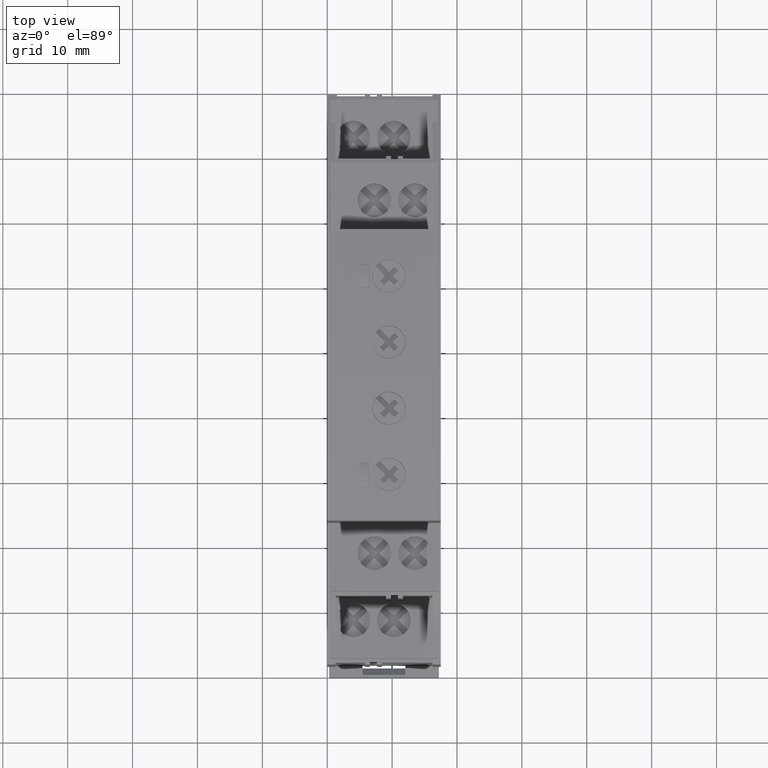
[diagram: clean part render]
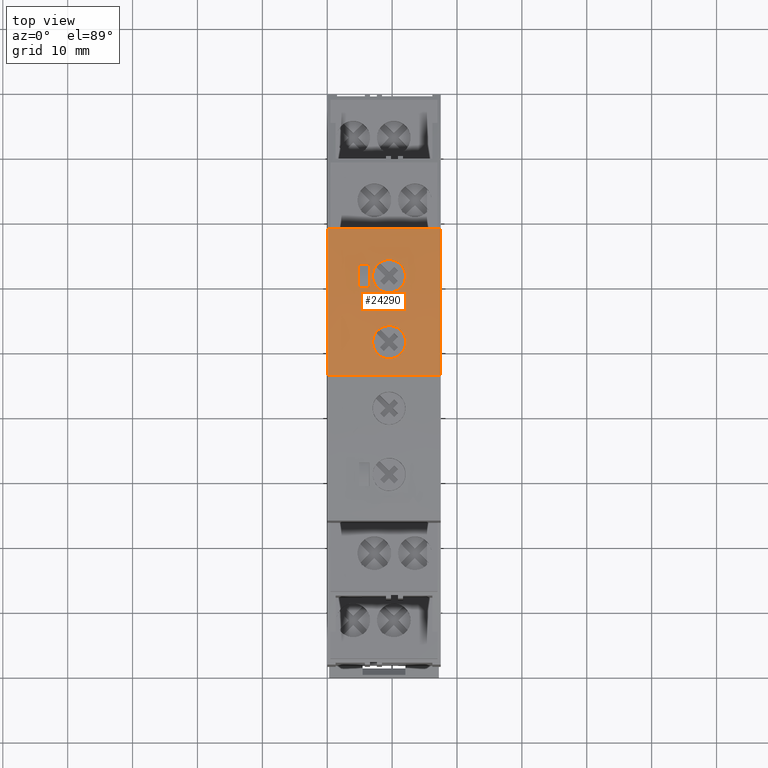
[diagram: same view with one face highlighted and labeled with its STEP entity id]
A machine part, top view. The second image highlights one B-rep face of the part: STEP entity #24290.
In plain terms, the highlighted face is a SurfaceOfExtrusion surface.
Its self-contained STEP definition (entity closure, byte-faithful):
#2890=CARTESIAN_POINT('',(5.06898951839837,59.8870171728506,0.));
#2900=VERTEX_POINT('',#2890);
#2930=CARTESIAN_POINT('',(119.402776944417,47.6831905576138,
-7.105427357601E-15));
#2940=CARTESIAN_POINT('',(81.2915144690776,51.7511327626927,
-7.105427357601E-15));
#2950=CARTESIAN_POINT('',(43.180251993738,55.8190749677716,
-7.105427357601E-15));
#2960=CARTESIAN_POINT('',(4.62790602818089,59.9340978001843,
-3.5527136788005E-15));
#2970=CARTESIAN_POINT('',(4.18682253796339,59.981178427518,
-3.5527136788005E-15));
#2980=CARTESIAN_POINT('',(-3.30600540006661,60.7809522745333,
-3.5527136788005E-15));
#2990=CARTESIAN_POINT('',(-10.3927920939344,61.1580976818854,
-7.105427357601E-15));
#3000=CARTESIAN_POINT('',(-55.8123475149446,61.1580961291441,
-7.105427357601E-15));
#3010=CARTESIAN_POINT('',(-94.1400983131337,61.1580948188476,
-7.105427357601E-15));
#3020=CARTESIAN_POINT('',(-132.467849111323,61.1580935085511,
-3.5527136788005E-15));
#3030=B_SPLINE_CURVE_WITH_KNOTS('',3,(#2930,#2940,#2950,#2960,#2970,
#2980,#2990,#3000,#3010,#3020),.UNSPECIFIED.,.F.,.F.,(4,2,2,2,4),(
-5.46706510011362,-0.0625495568482094,0.,1.,6.40451307342179),
.UNSPECIFIED.);
#3040=CARTESIAN_POINT('',(-17.4845967167556,61.1580974394405,
3.5527136788005E-15));
#3050=VERTEX_POINT('',#3040);
#3060=EDGE_CURVE('',#2900,#3050,#3030,.T.);
#6440=CARTESIAN_POINT('',(-14.9343686622388,61.1418401627189,
9.54993299373514));
#6450=VERTEX_POINT('',#6440);
#6480=CARTESIAN_POINT('',(-12.3843686634213,59.45,9.54985533396896));
#6490=DIRECTION('',(-5.02021470133193E-18,-1.,7.11767649097219E-18));
#6500=DIRECTION('',(-0.999999999536252,5.02043146649091E-18,
3.04548102664226E-5));
#6510=AXIS2_PLACEMENT_3D('',#6480,#6490,#6500);
#6520=CYLINDRICAL_SURFACE('',#6510,2.55000000000001);
#6530=CARTESIAN_POINT('',(163.605399881628,42.9650651599592,
-3.5527136788005E-15));
#6540=CARTESIAN_POINT('',(154.160425600065,43.9732083441616,
-3.5527136788005E-15));
#6550=CARTESIAN_POINT('',(144.715451318501,44.981351528364,
-3.5527136788005E-15));
#6560=CARTESIAN_POINT('',(129.455876721617,46.6101369188872,
-3.5527136788005E-15));
#6570=CARTESIAN_POINT('',(123.641276406296,47.230779125208,
-3.5527136788005E-15));
#6580=CARTESIAN_POINT('',(79.7996970765649,51.9103672393031,
-3.5527136788005E-15));
#6590=CARTESIAN_POINT('',(41.7727180621554,55.9693131470774,
-3.5527136788005E-15));
#6600=CARTESIAN_POINT('',(-3.30600540006662,60.7809522745333,
-3.5527136788005E-15));
#6610=CARTESIAN_POINT('',(-10.3927920939344,61.1580976818854,
-3.5527136788005E-15));
#6620=CARTESIAN_POINT('',(-55.7275852877941,61.1580961320417,
-3.5527136788005E-15));
#6630=CARTESIAN_POINT('',(-93.9705738588324,61.1580948246429,
-3.5527136788005E-15));
#6640=CARTESIAN_POINT('',(-138.061192169791,61.1580933173333,
-3.5527136788005E-15));
#6650=CARTESIAN_POINT('',(-143.908821909711,61.1580931174225,
-3.5527136788005E-15));
#6660=CARTESIAN_POINT('',(-159.255077437568,61.1580925927858,
-3.5527136788005E-15));
#6670=CARTESIAN_POINT('',(-168.753703225504,61.1580922680598,
-3.5527136788005E-15));
#6680=CARTESIAN_POINT('',(-178.25232901344,61.1580919433338,
-3.5527136788005E-15));
#6690=B_SPLINE_CURVE_WITH_KNOTS('',3,(#6530,#6540,#6550,#6560,#6570,
#6580,#6590,#6600,#6610,#6620,#6630,#6640,#6650,#6660,#6670,#6680),
.UNSPECIFIED.,.F.,.F.,(4,2,2,2,2,2,2,4),(-7.5565066212551,
-6.21712537290409,-5.39256339985572,0.,1.,6.39256093547402,
7.21712253170059,8.55650316795928),.UNSPECIFIED.);
#6700=DIRECTION('',(1.35525271560688E-20,-2.95822839457879E-31,1.));
#6710=VECTOR('',#6700,1.);
#6720=SURFACE_OF_LINEAR_EXTRUSION('',#6690,#6710);
#6730=CARTESIAN_POINT('',(-9.83436866460386,61.0117512492353,
9.54977767420301));
#6740=CARTESIAN_POINT('',(-9.83437009539106,61.0117513039963,
9.50279701061565));
#6750=CARTESIAN_POINT('',(-9.83567084149853,61.0118011004267,
9.45585570304565));
#6760=CARTESIAN_POINT('',(-9.83825854758815,61.0119000901602,
9.40906017051482));
#6770=CARTESIAN_POINT('',(-9.84084626354947,61.0119990802713,
9.36226445946645));
#6780=CARTESIAN_POINT('',(-9.84472081498826,61.0121472583158,
9.31561546590439));
#6790=CARTESIAN_POINT('',(-9.84985877979209,61.0123435066599,
9.26921383706262));
#6800=CARTESIAN_POINT('',(-9.85242776428031,61.0124416309116,
9.2460130038001));
#6810=CARTESIAN_POINT('',(-9.85531243276628,61.0125517640349,
9.22287396955083));
#6820=CARTESIAN_POINT('',(-9.8585089559361,61.0126737190542,
9.19980856837508));
#6830=CARTESIAN_POINT('',(-9.86170418256071,61.0127956246072,
9.17675252278158));
#6840=CARTESIAN_POINT('',(-9.86521791546375,61.0129296060234,
9.15371923703041));
#6850=CARTESIAN_POINT('',(-9.86905275047556,61.0130757115902,
9.13070636512624));
#6860=CARTESIAN_POINT('',(-9.87672201478744,61.0133679072662,
9.08468305599699));
#6870=CARTESIAN_POINT('',(-9.88567335510928,61.0137085196006,
9.03876203105041));
#6880=CARTESIAN_POINT('',(-9.89590263202849,61.0140968746096,
8.99304584176891));
#6890=CARTESIAN_POINT('',(-9.90613186742491,61.0144852280423,
8.94732983805902));
#6900=CARTESIAN_POINT('',(-9.91763890911376,61.0149213183217,
8.90181960431214));
#6910=CARTESIAN_POINT('',(-9.93040746228746,61.0154038697866,
8.85662058056305));
#6920=CARTESIAN_POINT('',(-9.94317598846684,61.0158864202313,
8.81142165237037));
#6930=CARTESIAN_POINT('',(-9.95720579832332,61.0164154218971,
8.7665348876935));
#6940=CARTESIAN_POINT('',(-9.97246826942564,61.0169890078428,
8.72206520993778));
#6950=CARTESIAN_POINT('',(-9.98773073641213,61.0175625936339,
8.6775955441742));
#6960=CARTESIAN_POINT('',(-10.0042255466376,61.0181807499991,
8.63354390746852));
#6970=CARTESIAN_POINT('',(-10.0219123260911,61.0188410639156,
8.59001156844863));
#6980=CARTESIAN_POINT('',(-10.0395991331519,61.0195013788627,
8.54647916147903));
#6990=CARTESIAN_POINT('',(-10.0584775109341,61.0202038344555,
8.50346695439364));
#7000=CARTESIAN_POINT('',(-10.078496636738,61.0209455488794,
8.46106968171263));
#7010=CARTESIAN_POINT('',(-10.1185457085472,61.0224293786188,
8.37625222091298));
#7020=CARTESIAN_POINT('',(-10.1631126958873,61.0240686120462,
8.29399570933056));
#7030=CARTESIAN_POINT('',(-10.2118414947932,61.0258414787042,
8.21470526690803));
#7040=CARTESIAN_POINT('',(-10.2362467764899,61.0267293994239,
8.1749935229983));
#7050=CARTESIAN_POINT('',(-10.26180144475,61.0276546665857,
8.13585406430694));
#7060=CARTESIAN_POINT('',(-10.2884644147918,61.028614493734,
8.09737972984446));
#7070=CARTESIAN_POINT('',(-10.315127267615,61.0295743166626,
8.05890556452693));
#7080=CARTESIAN_POINT('',(-10.3428979629891,61.0305686803787,
8.02109733204916));
#7090=CARTESIAN_POINT('',(-10.3717229947071,61.0315943176135,
7.98404646561821));
#7100=CARTESIAN_POINT('',(-10.4005479562598,61.0326199523516,
7.94699568937567));
#7110=CARTESIAN_POINT('',(-10.4304266950555,61.033676837846,
7.91070307274718));
#7120=CARTESIAN_POINT('',(-10.4612943246616,61.034761305614,
7.87525535558491));
#7130=CARTESIAN_POINT('',(-10.4921619361553,61.0358457727456,
7.83980765922239));
#7140=CARTESIAN_POINT('',(-10.5240177976837,61.036957796752,
7.80520561502384));
#7150=CARTESIAN_POINT('',(-10.5567872740866,61.0380934093225,
7.77152851772921));
#7160=CARTESIAN_POINT('',(-10.5895567908461,61.0392290232915,
7.73785137896023));
#7170=CARTESIAN_POINT('',(-10.623239219487,61.0403881987629,
7.7050998761412));
#7180=CARTESIAN_POINT('',(-10.6577523758643,61.0415667864048,
7.67334362456164));
#7190=CARTESIAN_POINT('',(-10.6922656395153,61.04274537771,
7.64158727427726));
#7200=CARTESIAN_POINT('',(-10.7276088873545,61.0439433535002,
7.61082677952441));
#7210=CARTESIAN_POINT('',(-10.7636951612094,61.0451565159858,
7.58112035961916));
#7220=CARTESIAN_POINT('',(-10.7919581509493,61.0461066722425,
7.55785411039742));
#7230=CARTESIAN_POINT('',(-10.8206765672782,61.047066134319,
7.53523440601891));
#7240=CARTESIAN_POINT('',(-10.8498078451728,61.0480329190582,
7.5132839271441));
#7250=CARTESIAN_POINT('',(-10.8789192776242,61.0489990451834,
7.49134840185232));
#7260=CARTESIAN_POINT('',(-10.9085284410575,61.0499753287013,
7.47001565067702));
#7270=CARTESIAN_POINT('',(-10.9386543250961,61.0509617189106,
7.44928159045009));
#7280=CARTESIAN_POINT('',(-10.9687758132021,61.051947965187,
7.4285505557121));
#7290=CARTESIAN_POINT('',(-10.9993955985342,61.0529437082474,
7.40843177429381));
#7300=CARTESIAN_POINT('',(-11.0304766570134,61.0539470828921,
7.3889581973646));
#7310=CARTESIAN_POINT('',(-11.0615576539441,61.0549504555499,
7.36948465899813));
#7320=CARTESIAN_POINT('',(-11.0930997019926,61.0559614516724,
7.35065649085724));
#7330=CARTESIAN_POINT('',(-11.1250617941916,61.0569781315938,
7.33250416441752));
#7340=CARTESIAN_POINT('',(-11.1570238469708,61.0579948102612,
7.31435186036566));
#7350=CARTESIAN_POINT('',(-11.1894057022946,61.0590171641709,
7.29687555139628));
#7360=CARTESIAN_POINT('',(-11.2221630342538,61.0600432145518,
7.28010246734853));
#7370=CARTESIAN_POINT('',(-11.2549203491176,61.0610692643971,
7.2633293920543));
#7380=CARTESIAN_POINT('',(-11.2880528842437,61.0620990019259,
7.24725967964604));
#7390=CARTESIAN_POINT('',(-11.3215137368332,61.0631304451511,
7.23191672282586));
#7400=CARTESIAN_POINT('',(-11.3549745952494,61.0641618885559,
7.21657376333395));
#7410=CARTESIAN_POINT('',(-11.3887635047744,61.0651950288347,
7.20195767939801));
#7420=CARTESIAN_POINT('',(-11.4228318030068,61.0662279165278,
7.18808759219905));
#7430=CARTESIAN_POINT('',(-11.4569001310606,61.0672608051251,
7.17421749285903));
#7440=CARTESIAN_POINT('',(-11.4912475763948,61.0682934324698,
7.16109349001661));
#7450=CARTESIAN_POINT('',(-11.525824609925,61.0693239166901,
7.14873015851336));
#7460=CARTESIAN_POINT('',(-11.560401698854,61.0703544025614,
7.1363668072018));
#7470=CARTESIAN_POINT('',(-11.595208104684,61.0713827369848,
7.12476420487441));
#7480=CARTESIAN_POINT('',(-11.6301944022978,61.0724071396078,
7.11393226788928));
#7490=CARTESIAN_POINT('',(-11.6651807829715,61.0734315446628,
7.10310030518843));
#7500=CARTESIAN_POINT('',(-11.7003467899541,61.0744520101268,
7.09303906173785));
#7510=CARTESIAN_POINT('',(-11.7356441524714,61.0754668895708,
7.08375385412412));
#7520=CARTESIAN_POINT('',(-11.8061744566748,61.0774947962134,
7.0652003852278));
#7530=CARTESIAN_POINT('',(-11.8775077425109,61.0795083676294,
7.04967144791306));
#7540=CARTESIAN_POINT('',(-11.9494276174366,61.0814992709349,
7.03722199690647));
#7550=CARTESIAN_POINT('',(-12.0213494293066,61.0834902278594,
7.02477221061157));
#7560=CARTESIAN_POINT('',(-12.093720477927,61.0854547228962,
7.01542456235536));
#7570=CARTESIAN_POINT('',(-12.1663624175622,61.0873867465447,
7.00919138988535));
#7580=CARTESIAN_POINT('',(-12.2390087162703,61.0893188861295,
7.00295784337724));
#7590=CARTESIAN_POINT('',(-12.3119088401132,61.0912180695439,
6.99984259629065));
#7600=CARTESIAN_POINT('',(-12.3848155486672,61.0930774325508,
6.99985537312706));
#7610=CARTESIAN_POINT('',(-12.4577233691528,61.0949368239158,
6.99986815015834));
#7620=CARTESIAN_POINT('',(-12.5306205938661,61.0967559624932,
7.0030084921253));
#7630=CARTESIAN_POINT('',(-12.6032791599152,61.0985295685673,
7.00926914284596));
#7640=CARTESIAN_POINT('',(-12.6759240397217,61.1003028405583,
7.01552861428674));
#7650=CARTESIAN_POINT('',(-12.7483078159866,61.1020300386562,
7.02490609520946));
#7660=CARTESIAN_POINT('',(-12.8201755120684,61.1037063453996,
7.0373720224478));
#7670=CARTESIAN_POINT('',(-12.8919998021932,61.1053816397034,
7.04983042063578));
#7680=CARTESIAN_POINT('',(-12.9633676158411,61.107007486202,
7.06538336915682));
#7690=CARTESIAN_POINT('',(-13.0340363608662,61.1085802136395,
7.08400215851493));
#7700=CARTESIAN_POINT('',(-13.0693643508158,61.1093664353148,
7.09330987160764));
#7710=CARTESIAN_POINT('',(-13.1045037373485,61.1101390853299,
7.10338017941443));
#7720=CARTESIAN_POINT('',(-13.1394057087117,61.1108974274336,
7.11419955774784));
#7730=CARTESIAN_POINT('',(-13.1743076878551,61.1116557697064,
7.12501893849306));
#7740=CARTESIAN_POINT('',(-13.2089719862711,61.1123997987874,
7.13658730480506));
#7750=CARTESIAN_POINT('',(-13.2433513046175,61.1131289072492,
7.14888702469795));
#7760=CARTESIAN_POINT('',(-13.277731103189,61.1138580258956,
7.16118691639859));
#7770=CARTESIAN_POINT('',(-13.311823752997,61.1145721792753,
7.1742173073717));
#7780=CARTESIAN_POINT('',(-13.3455897291104,61.1152710104514,
7.18795904859241));
#7790=CARTESIAN_POINT('',(-13.3793655385732,61.1159700451416,
7.20170479169186));
#7800=CARTESIAN_POINT('',(-13.4129152834136,61.1166558334677,
7.21620337212135));
#7810=CARTESIAN_POINT('',(-13.4461921553661,61.1173277953464,
7.2314440520877));
#7820=CARTESIAN_POINT('',(-13.4794689405646,61.1179997554732,
7.24668469232107));
#7830=CARTESIAN_POINT('',(-13.5124725981581,61.118657884177,
7.26266734813818));
#7840=CARTESIAN_POINT('',(-13.5451555082809,61.1193016728811,
7.27937655168516));
#7850=CARTESIAN_POINT('',(-13.5778383590455,61.1199454604159,
7.29608572488513));
#7860=CARTESIAN_POINT('',(-13.6102002035117,61.1205749032324,
7.31352133676232));
#7870=CARTESIAN_POINT('',(-13.6421936925112,61.1211895822769,
7.33166323313659));
#7880=CARTESIAN_POINT('',(-13.6741871470993,61.1218042606602,
7.34980510999787));
#7890=CARTESIAN_POINT('',(-13.7058119889109,61.12240417089,
7.36865313956051));
#7900=CARTESIAN_POINT('',(-13.7370221178224,61.1229889957261,
7.38818268708257));
#7910=CARTESIAN_POINT('',(-13.7682322353061,61.123573820348,
7.40771222745367));
#7920=CARTESIAN_POINT('',(-13.7990273891519,61.12414355559,
7.42792313382157));
#7930=CARTESIAN_POINT('',(-13.8293636055478,61.1246979932447,
7.44878664941125));
#7940=CARTESIAN_POINT('',(-13.8596998320276,61.1252524310837,
7.4696501719361));
#7950=CARTESIAN_POINT('',(-13.8895768815622,61.1257915677863,
7.49116613437756));
#7960=CARTESIAN_POINT('',(-13.9189536856238,61.1263153070087,
7.51330216509955));
#7970=CARTESIAN_POINT('',(-13.9483305202633,61.1268390467763,
7.53543821886269));
#7980=CARTESIAN_POINT('',(-13.9772068856304,61.1273473859814,
7.55819415740783));
#7990=CARTESIAN_POINT('',(-14.0055453000478,61.127840339249,
7.58153465052928));
#8000=CARTESIAN_POINT('',(-14.0779418474585,61.1290996939216,
7.64116293784146));
#8010=CARTESIAN_POINT('',(-14.1466946475787,61.1302563895651,
7.70448912699692));
#8020=CARTESIAN_POINT('',(-14.2116390543078,61.1313191708125,
7.77120896141774));
#8030=CARTESIAN_POINT('',(-14.2441683894159,61.1318514963673,
7.80462757221953));
#8040=CARTESIAN_POINT('',(-14.275859074463,61.1323621526014,
7.83902008679293));
#8050=CARTESIAN_POINT('',(-14.3066309153625,61.1328510988096,
7.87432322900581));
#8060=CARTESIAN_POINT('',(-14.3374026261419,61.1333400429503,
7.90962622193791));
#8070=CARTESIAN_POINT('',(-14.3672548193312,61.133807268578,
7.94583919170742));
#8080=CARTESIAN_POINT('',(-14.3961119413379,61.1342528774114,
7.98288724758124));
#8090=CARTESIAN_POINT('',(-14.4249689976691,61.1346984852307,
8.01993521913797));
#8100=CARTESIAN_POINT('',(-14.4528303498704,61.1351224690328,
8.05781753428827));
#8110=CARTESIAN_POINT('',(-14.4796279738634,61.135525082935,
8.09644953309786));
#8120=CARTESIAN_POINT('',(-14.5064255863227,61.1359276966639,
8.13508151528022));
#8130=CARTESIAN_POINT('',(-14.5321588985852,61.1363089345612,
8.17446237080877));
#8140=CARTESIAN_POINT('',(-14.5567696450108,61.1366691980195,
8.21449995984976));
#8150=CARTESIAN_POINT('',(-14.5813804257496,61.1370294619802,
8.2545376047126));
#8160=CARTESIAN_POINT('',(-14.6048681469657,61.1373687468451,
8.29523112952606));
#8170=CARTESIAN_POINT('',(-14.6271858910912,61.1376875853374,
8.33648363359551));
#8180=CARTESIAN_POINT('',(-14.6495037085452,61.1380064248774,
8.37773627320664));
#8190=CARTESIAN_POINT('',(-14.670651148788,61.1383048146342,
8.41954702174243));
#8200=CARTESIAN_POINT('',(-14.6905935871953,61.1385833952818,
8.46181737462932));
#8210=CARTESIAN_POINT('',(-14.7105402249557,61.1388620345911,
8.5040966285412));
#8220=CARTESIAN_POINT('',(-14.7292653251682,61.1391206387132,
8.54679635855181));
#8230=CARTESIAN_POINT('',(-14.7467917455732,61.1393605439992,
8.58992972179045));
#8240=CARTESIAN_POINT('',(-14.7643334218535,61.1396006581108,
8.63310063047176));
#8250=CARTESIAN_POINT('',(-14.7807352161208,61.1398228670235,
8.67686163890282));
#8260=CARTESIAN_POINT('',(-14.7959462613422,61.140027340046,
8.72112528793103));
#8270=CARTESIAN_POINT('',(-14.8111572367925,61.1402318121307,
8.76538873392736));
#8280=CARTESIAN_POINT('',(-14.8251770811705,61.1404185449566,
8.81015397595753));
#8290=CARTESIAN_POINT('',(-14.8379632587392,61.1405877354312,
8.85532415264806));
#8300=CARTESIAN_POINT('',(-14.8507494029692,61.1407569254648,
8.90049421156175));
#8310=CARTESIAN_POINT('',(-14.8623015689704,61.140908570624,
8.94606828614944));
#8320=CARTESIAN_POINT('',(-14.8725876479208,61.1410428981166,
8.99194289892543));
#8330=CARTESIAN_POINT('',(-14.8828737191605,61.1411772255086,
9.03781747731214));
#8340=CARTESIAN_POINT('',(-14.8918934728404,61.1412942334957,
9.08399163065924));
#8350=CARTESIAN_POINT('',(-14.8996265354433,61.1413941751796,
9.13035820974547));
#8360=CARTESIAN_POINT('',(-14.9073596063357,61.1414941169706,
9.17672483853489));
#8370=CARTESIAN_POINT('',(-14.9138058435908,61.141576991458,
9.22328291491792));
#8380=CARTESIAN_POINT('',(-14.9189571599947,61.1416430688537,
9.26992471213882));
#8390=CARTESIAN_POINT('',(-14.9241084915697,61.1417091464439,
9.31656664672487));
#8400=CARTESIAN_POINT('',(-14.9279648520219,61.1417584266614,
9.36329133909781));
#8410=CARTESIAN_POINT('',(-14.9305302319004,61.1417911850555,
9.40999373380602));
#8420=CARTESIAN_POINT('',(-14.9330956244922,61.141823943612,
9.45669635995713));
#8430=CARTESIAN_POINT('',(-14.9343700801301,61.1418401807973,
9.50337577255858));
#8440=CARTESIAN_POINT('',(-14.9343686622388,61.1418401627189,
9.54993299373514));
#8450=B_SPLINE_CURVE_WITH_KNOTS('',3,(#6730,#6740,#6750,#6760,#6770,
#6780,#6790,#6800,#6810,#6820,#6830,#6840,#6850,#6860,#6870,#6880,#6890,
#6900,#6910,#6920,#6930,#6940,#6950,#6960,#6970,#6980,#6990,#7000,#7010,
#7020,#7030,#7040,#7050,#7060,#7070,#7080,#7090,#7100,#7110,#7120,#7130,
#7140,#7150,#7160,#7170,#7180,#7190,#7200,#7210,#7220,#7230,#7240,#7250,
#7260,#7270,#7280,#7290,#7300,#7310,#7320,#7330,#7340,#7350,#7360,#7370,
#7380,#7390,#7400,#7410,#7420,#7430,#7440,#7450,#7460,#7470,#7480,#7490,
#7500,#7510,#7520,#7530,#7540,#7550,#7560,#7570,#7580,#7590,#7600,#7610,
#7620,#7630,#7640,#7650,#7660,#7670,#7680,#7690,#7700,#7710,#7720,#7730,
#7740,#7750,#7760,#7770,#7780,#7790,#7800,#7810,#7820,#7830,#7840,#7850,
#7860,#7870,#7880,#7890,#7900,#7910,#7920,#7930,#7940,#7950,#7960,#7970,
#7980,#7990,#8000,#8010,#8020,#8030,#8040,#8050,#8060,#8070,#8080,#8090,
#8100,#8110,#8120,#8130,#8140,#8150,#8160,#8170,#8180,#8190,#8200,#8210,
#8220,#8230,#8240,#8250,#8260,#8270,#8280,#8290,#8300,#8310,#8320,#8330,
#8340,#8350,#8360,#8370,#8380,#8390,#8400,#8410,#8420,#8430,#8440),
.UNSPECIFIED.,.F.,.F.,(4,3,3,3,3,3,3,3,3,3,3,3,3,3,3,3,3,3,3,3,3,3,3,3,3
,3,3,3,3,3,3,3,3,3,3,3,3,3,3,3,3,3,3,3,3,3,3,3,3,3,3,3,3,3,3,3,3,4),(0.,
0.140789243961421,0.281134309823438,0.351079524550973,0.420984847209356,
0.561260812651888,0.702005892275691,0.84300887844417,0.98404569352286,
1.12489053285828,1.40521064777358,1.54538550322228,1.68606356310443,
1.82703738014274,1.96808464603948,2.10897941017386,2.24950300932557,
2.35917206191136,2.46871847675433,2.57863222710921,2.68883422588614,
2.79922391502827,2.90969501836445,3.02013885584273,3.13044753843224,
3.24051720293831,3.35025144474984,3.56919063471398,3.78807520364252,
4.00686880689744,4.22567015181684,4.44450789390398,4.6635148385327,
4.77315882077664,4.88277057070594,4.99225000839648,5.10187607394549,
5.21186262174055,5.32211580121404,5.43253328783892,5.54300780912934,
5.65343042907033,5.76369374873764,6.04394740143501,6.18417331776492,
6.32488575262147,6.46587512403215,6.6069181012559,6.74778878146943,
6.88826965742637,7.02818578292553,7.16830654562768,7.30894826000571,
7.44990497971763,7.59095495670099,7.73187194426762,7.87243613652887,
8.01244562653242),.UNSPECIFIED.);
#8460=SURFACE_CURVE('',#8450,(#6520,#6720),.CURVE_3D.);
#8470=CARTESIAN_POINT('',(-9.83436866460386,61.0117512492353,
9.54977767420278));
#8480=VERTEX_POINT('',#8470);
#8490=EDGE_CURVE('',#8480,#6450,#8460,.T.);
#8730=CARTESIAN_POINT('',(135.270477036938,45.9894947125665,
4.8656414878044));
#8740=CARTESIAN_POINT('',(129.455876721617,46.6101369188872,
4.86581857035387));
#8750=CARTESIAN_POINT('',(123.641276406296,47.230779125208,
4.86599565290333));
#8760=CARTESIAN_POINT('',(79.7996970765649,51.9103672393031,
4.86733083988422));
#8770=CARTESIAN_POINT('',(41.7727180621554,55.9693131470774,
4.86848894431565));
#8780=CARTESIAN_POINT('',(-3.30600540006668,60.7809522745333,
4.86986180828639));
#8790=CARTESIAN_POINT('',(-10.3927920939344,61.1580976818854,
4.87007763503065));
#8800=CARTESIAN_POINT('',(-55.727585287794,61.1580961320417,
4.87145829755648));
#8810=CARTESIAN_POINT('',(-93.9705738588324,61.1580948246429,
4.87262298051798));
#8820=CARTESIAN_POINT('',(-138.061192169791,61.1580933173333,
4.8739657519338));
#8830=CARTESIAN_POINT('',(-143.908821909711,61.1580931174225,
4.87414384038812));
#8840=CARTESIAN_POINT('',(-149.756451649632,61.1580929175118,
4.87432192884244));
#8850=B_SPLINE_CURVE_WITH_KNOTS('',3,(#8730,#8740,#8750,#8760,#8770,
#8780,#8790,#8800,#8810,#8820,#8830,#8840),.UNSPECIFIED.,.F.,.F.,(4,2,2,
2,2,4),(-6.21712537290409,-5.39256339985572,0.,1.,6.39256093547402,
7.21712253170059),.UNSPECIFIED.);
#8860=CARTESIAN_POINT('',(-0.384554478320108,60.4258392257156,
4.86977283605282));
#8870=VERTEX_POINT('',#8860);
#8880=CARTESIAN_POINT('',(-3.98455447665062,60.7020187637251,
4.86988247336978));
#8890=VERTEX_POINT('',#8880);
#8900=EDGE_CURVE('',#8870,#8890,#8850,.T.);
#10140=CARTESIAN_POINT('',(-3.98450484392727,60.6511147143236,
6.49959951629552));
#10150=DIRECTION('',(-0.999999999536252,5.02043146649139E-18,
3.04548102665637E-5));
#10160=DIRECTION('',(-5.02021973198065E-18,-1.,6.95249246343215E-18));
#10170=AXIS2_PLACEMENT_3D('',#10140,#10150,#10160);
#10180=PLANE('',#10170);
#10250=CARTESIAN_POINT('',(-3.98450484392727,60.7020154063509,
6.49959951629553));
#10260=VERTEX_POINT('',#10250);
#10290=CARTESIAN_POINT('',(-3.98455447665062,60.7020187637251,
4.86988247336978));
#10300=CARTESIAN_POINT('',(-3.98455034059034,60.7020184839444,
5.00569222694693));
#10310=CARTESIAN_POINT('',(-3.98454620453006,60.7020182041636,
5.14150198052407));
#10320=CARTESIAN_POINT('',(-3.98454206846978,60.7020179243827,
5.27731173410122));
#10330=CARTESIAN_POINT('',(-3.9845379324095,60.7020176446017,
5.41312148767836));
#10340=CARTESIAN_POINT('',(-3.98453379634922,60.7020173648207,
5.54893124125551));
#10350=CARTESIAN_POINT('',(-3.98452966028894,60.7020170850395,
5.68474099483265));
#10360=CARTESIAN_POINT('',(-3.98452552422866,60.7020168052583,
5.8205507484098));
#10370=CARTESIAN_POINT('',(-3.98452138816839,60.702016525477,
5.95636050198694));
#10380=CARTESIAN_POINT('',(-3.98451725210811,60.7020162456956,
6.09217025556409));
#10390=CARTESIAN_POINT('',(-3.98451311604783,60.7020159659141,
6.22798000914123));
#10400=CARTESIAN_POINT('',(-3.98450897998755,60.7020156861326,
6.36378976271838));
#10410=CARTESIAN_POINT('',(-3.98450484392727,60.7020154063509,
6.49959951629552));
#10420=B_SPLINE_CURVE_WITH_KNOTS('',3,(#10290,#10300,#10310,#10320,
#10330,#10340,#10350,#10360,#10370,#10380,#10390,#10400,#10410),
.UNSPECIFIED.,.F.,.F.,(4,3,3,3,4),(0.,0.407429260921244,
0.814858521842488,1.22228778276373,1.62971704368498),.UNSPECIFIED.);
#10430=SURFACE_CURVE('',#10420,(#10180,#6720),.CURVE_3D.);
#10440=EDGE_CURVE('',#8890,#10260,#10430,.T.);
#11040=CARTESIAN_POINT('',(-17.4845967167556,61.1580974394405,17.5));
#11050=VERTEX_POINT('',#11040);
#11080=CARTESIAN_POINT('',(117.826676090974,47.8514213315287,17.5));
#11090=CARTESIAN_POINT('',(79.7996970765649,51.9103672393031,17.5));
#11100=CARTESIAN_POINT('',(41.7727180621554,55.9693131470774,17.5));
#11110=CARTESIAN_POINT('',(-3.3060054000667,60.7809522745333,17.5));
#11120=CARTESIAN_POINT('',(-10.3927920939345,61.1580976818854,17.5));
#11130=CARTESIAN_POINT('',(-55.727585287794,61.1580961320417,17.5));
#11140=CARTESIAN_POINT('',(-93.9705738588324,61.1580948246429,17.5));
#11150=CARTESIAN_POINT('',(-132.213562429871,61.158093517244,17.5));
#11160=B_SPLINE_CURVE_WITH_KNOTS('',3,(#11080,#11090,#11100,#11110,
#11120,#11130,#11140,#11150),.UNSPECIFIED.,.F.,.F.,(4,2,2,4),(
-5.39256339985572,0.,1.,6.39256093547402),.UNSPECIFIED.);
#11170=CARTESIAN_POINT('',(3.7457390477458,60.0282590548518,17.5));
#11180=VERTEX_POINT('',#11170);
#11190=EDGE_CURVE('',#11180,#11050,#11160,.T.);
#11210=CARTESIAN_POINT('',(163.605399881628,42.9650651599592,17.5));
#11220=CARTESIAN_POINT('',(154.160425600065,43.9732083441616,17.5));
#11230=CARTESIAN_POINT('',(144.715451318501,44.981351528364,17.5));
#11240=CARTESIAN_POINT('',(129.455876721617,46.6101369188872,17.5));
#11250=CARTESIAN_POINT('',(123.641276406296,47.230779125208,17.5));
#11260=CARTESIAN_POINT('',(79.7996970765649,51.9103672393031,17.5));
#11270=CARTESIAN_POINT('',(41.7727180621554,55.9693131470774,17.5));
#11280=CARTESIAN_POINT('',(-3.30600540006662,60.7809522745333,17.5));
#11290=CARTESIAN_POINT('',(-10.3927920939344,61.1580976818854,17.5));
#11300=CARTESIAN_POINT('',(-55.7275852877941,61.1580961320417,17.5));
#11310=CARTESIAN_POINT('',(-93.9705738588324,61.1580948246429,17.5));
#11320=CARTESIAN_POINT('',(-138.061192169791,61.1580933173333,17.5));
#11330=CARTESIAN_POINT('',(-143.908821909711,61.1580931174225,17.5));
#11340=CARTESIAN_POINT('',(-159.255077437568,61.1580925927858,17.5));
#11350=CARTESIAN_POINT('',(-168.753703225504,61.1580922680598,17.5));
#11360=CARTESIAN_POINT('',(-178.25232901344,61.1580919433338,17.5));
#11370=B_SPLINE_CURVE_WITH_KNOTS('',3,(#11210,#11220,#11230,#11240,
#11250,#11260,#11270,#11280,#11290,#11300,#11310,#11320,#11330,#11340,
#11350,#11360),.UNSPECIFIED.,.F.,.F.,(4,2,2,2,2,2,2,4),(-7.5565066212551
,-6.21712537290409,-5.39256339985572,0.,1.,6.39256093547402,
7.21712253170059,8.55650316795928),.UNSPECIFIED.);
#11380=CARTESIAN_POINT('',(5.06898951839837,59.8870171728506,17.5));
#11390=VERTEX_POINT('',#11380);
#11400=EDGE_CURVE('',#11390,#11180,#11370,.T.);
#11890=CARTESIAN_POINT('',(-0.384504845596751,59.6762918563897,
6.49948987897856));
#11900=DIRECTION('',(0.999999999536252,-5.02043146649139E-18,
-3.04548102665637E-5));
#11910=DIRECTION('',(5.02021973198065E-18,1.,-6.95249246343215E-18));
#11920=AXIS2_PLACEMENT_3D('',#11890,#11900,#11910);
#11930=PLANE('',#11920);
#11940=CARTESIAN_POINT('',(-0.384504845596745,60.4258349671519,
6.49948987897857));
#11950=CARTESIAN_POINT('',(-0.384508981657025,60.4258353220327,
6.36368012540142));
#11960=CARTESIAN_POINT('',(-0.384513117717306,60.4258356769134,
6.22787037182428));
#11970=CARTESIAN_POINT('',(-0.384517253777586,60.425836031794,
6.09206061824713));
#11980=CARTESIAN_POINT('',(-0.384521389837865,60.4258363866746,
5.95625086466999));
#11990=CARTESIAN_POINT('',(-0.384525525898146,60.425836741555,
5.82044111109284));
#12000=CARTESIAN_POINT('',(-0.384529661958426,60.4258370964353,
5.68463135751569));
#12010=CARTESIAN_POINT('',(-0.384533798018705,60.4258374513156,
5.54882160393855));
#12020=CARTESIAN_POINT('',(-0.384537934078983,60.4258378061958,
5.41301185036141));
#12030=CARTESIAN_POINT('',(-0.384542070139263,60.4258381610759,
5.27720209678426));
#12040=CARTESIAN_POINT('',(-0.384544138169403,60.4258383385159,
5.20929721999568));
#12050=CARTESIAN_POINT('',(-0.384546206199542,60.4258385159559,
5.14139234320712));
#12060=CARTESIAN_POINT('',(-0.384548274229682,60.4258386933958,
5.07348746641854));
#12070=CARTESIAN_POINT('',(-0.384550342259822,60.4258388708358,
5.00558258962997));
#12080=CARTESIAN_POINT('',(-0.384552410289961,60.4258390482757,
4.9376777128414));
#12090=CARTESIAN_POINT('',(-0.3845544783201,60.4258392257156,
4.86977283605282));
#12100=B_SPLINE_CURVE_WITH_KNOTS('',3,(#11940,#11950,#11960,#11970,
#11980,#11990,#12000,#12010,#12020,#12030,#12040,#12050,#12060,#12070,
#12080,#12090),.UNSPECIFIED.,.F.,.F.,(4,3,3,3,3,4),(0.,0.407429260921771
,0.814858521843542,1.22228778276531,1.4260024132262,1.62971704368708),
.UNSPECIFIED.);
#12110=SURFACE_CURVE('',#12100,(#11930,#6720),.CURVE_3D.);
#12120=CARTESIAN_POINT('',(-0.384504845596759,60.4258349671519,
6.49948987897857));
#12130=VERTEX_POINT('',#12120);
#12140=EDGE_CURVE('',#12130,#8870,#12110,.T.);
#13190=CARTESIAN_POINT('',(-4.73441286143508,60.751327555371,
9.51990531232106));
#13200=VERTEX_POINT('',#13190);
#13230=CARTESIAN_POINT('',(-2.18441286261762,59.45,9.51982765255488));
#13240=DIRECTION('',(-5.02021470133193E-18,-1.,7.11767649097219E-18));
#13250=DIRECTION('',(-0.999999999536252,5.02043146649091E-18,
3.04548102664226E-5));
#13260=AXIS2_PLACEMENT_3D('',#13230,#13240,#13250);
#13270=CYLINDRICAL_SURFACE('',#13260,2.55000000000001);
#13280=CARTESIAN_POINT('',(0.365587136199838,60.3600534231454,
9.51974999278875));
#13290=CARTESIAN_POINT('',(0.365585707923089,60.3600535511118,
9.47285176107704));
#13300=CARTESIAN_POINT('',(0.364289511129872,60.3601696963046,
9.42599281691409));
#13310=CARTESIAN_POINT('',(0.361710910387162,60.3604006752277,
9.37927968017543));
#13320=CARTESIAN_POINT('',(0.359132299706892,60.360631655041,
9.332566363411));
#13330=CARTESIAN_POINT('',(0.355271410799865,60.3609774567104,
9.28599980657588));
#13340=CARTESIAN_POINT('',(0.350151732776884,60.3614357539638,
9.23968070580591));
#13350=CARTESIAN_POINT('',(0.347591891669157,60.3616649027782,
9.2165211364557));
#13360=CARTESIAN_POINT('',(0.34471752348991,60.3619221580116,
9.19342338864207));
#13370=CARTESIAN_POINT('',(0.341532469977071,60.3622071349514,
9.17039929545836));
#13380=CARTESIAN_POINT('',(0.338348698819865,60.3624919971548,
9.14738447215834));
#13390=CARTESIAN_POINT('',(0.334847574342453,60.3628051778624,
9.12439227385161));
#13400=CARTESIAN_POINT('',(0.331026604763745,60.3631468491534,
9.10142080994805));
#13410=CARTESIAN_POINT('',(0.323385057294004,60.3638301567107,
9.05548023694619));
#13420=CARTESIAN_POINT('',(0.31446635502245,60.364627236517,
9.00964253929408));
#13430=CARTESIAN_POINT('',(0.304274892416275,60.3655371782666,
8.96401000445037));
#13440=CARTESIAN_POINT('',(0.294083471419315,60.3664471163012,
8.918377655913));
#13450=CARTESIAN_POINT('',(0.282619420833964,60.3674699037113,
8.87295140966113));
#13460=CARTESIAN_POINT('',(0.269899296539238,60.3686034041559,
8.82783644927635));
#13470=CARTESIAN_POINT('',(0.257179199247963,60.3697369021942,
8.78272158466575));
#13480=CARTESIAN_POINT('',(0.243203256874572,60.3709810915228,
8.73791896426642));
#13490=CARTESIAN_POINT('',(0.228000358138482,60.3723326116177,
8.69353324235883));
#13500=CARTESIAN_POINT('',(0.212797463451619,60.3736841313526,
8.64914753227318));
#13510=CARTESIAN_POINT('',(0.196367931335374,60.3751429517288,
8.60517966682362));
#13520=CARTESIAN_POINT('',(0.178752403054088,60.3767045634323,
8.56173061826095));
#13530=CARTESIAN_POINT('',(0.161136847046431,60.3782661775937,
8.51828150131063));
#13540=CARTESIAN_POINT('',(0.142335694116426,60.3799305456441,
8.47535210637264));
#13550=CARTESIAN_POINT('',(0.122400029793301,60.3816921543738,
8.43303683578892));
#13560=CARTESIAN_POINT('',(0.0825177077429154,60.385216343262,
8.34838296011587));
#13570=CARTESIAN_POINT('',(0.0381433085772182,60.3891254707593,
8.26628858938116));
#13580=CARTESIAN_POINT('',(-0.0103677200626225,60.3933795589279,
8.18715075317788));
#13590=CARTESIAN_POINT('',(-0.0346640537176335,60.3955101825911,
8.14751524498436));
#13600=CARTESIAN_POINT('',(-0.0601023308538062,60.3977364734668,
8.10845111417458));
#13610=CARTESIAN_POINT('',(-0.0866414608674402,60.4000535390378,
8.07005003305624));
#13620=CARTESIAN_POINT('',(-0.113180475107724,60.4023705945009,
8.03164911945739));
#13630=CARTESIAN_POINT('',(-0.14081989004247,60.4047783825253,
7.99391205407619));
#13640=CARTESIAN_POINT('',(-0.169506367538834,60.4072709084603,
7.95692912223073));
#13650=CARTESIAN_POINT('',(-0.198192775656709,60.4097634283672,
7.9199462798288));
#13660=CARTESIAN_POINT('',(-0.227925696364752,60.4123406355461,
7.88371835395291));
#13670=CARTESIAN_POINT('',(-0.258640570220679,60.4149955647039,
7.84833099451565));
#13680=CARTESIAN_POINT('',(-0.289355425927448,60.417650492293,
7.81294365598848));
#13690=CARTESIAN_POINT('',(-0.321051605199262,60.4203830845728,
7.77839762595903));
#13700=CARTESIAN_POINT('',(-0.353654931484966,60.4231855880682,
7.74477120342574));
#13710=CARTESIAN_POINT('',(-0.386258297030072,60.4259880949383,
7.71114474040108));
#13720=CARTESIAN_POINT('',(-0.419768119636028,60.428860451034,
7.67843856383574));
#13730=CARTESIAN_POINT('',(-0.454102763204977,60.4317943424654,
7.64672141961701));
#13740=CARTESIAN_POINT('',(-0.488437511586882,60.4347282428531,
7.61500417857574));
#13750=CARTESIAN_POINT('',(-0.523596351777697,60.4377236139867,
7.58427656542993));
#13760=CARTESIAN_POINT('',(-0.559492903652582,60.4407718511979,
7.55459608173247));
#13770=CARTESIAN_POINT('',(-0.587804131543423,60.4431759633993,
7.53118740056448));
#13780=CARTESIAN_POINT('',(-0.616573882867821,60.4456129316957,
7.50843003660142));
#13790=CARTESIAN_POINT('',(-0.645758961066739,60.448078526671,
7.4863468507664));
#13800=CARTESIAN_POINT('',(-0.674924206279392,60.4505424461288,
7.46427867176187));
#13810=CARTESIAN_POINT('',(-0.704584023362217,60.4530417067778,
7.44282197539349));
#13820=CARTESIAN_POINT('',(-0.734766543251261,60.4555779933552,
7.42196551486622));
#13830=CARTESIAN_POINT('',(-0.764943885342639,60.4581138448338,
7.40111263225534));
#13840=CARTESIAN_POINT('',(-0.79562220512413,60.4606848888418,
7.38087603963644));
#13850=CARTESIAN_POINT('',(-0.826764289252085,60.463287335177,
7.36128871354111));
#13860=CARTESIAN_POINT('',(-0.857906311530817,60.4658897763436,
7.34170142634685));
#13870=CARTESIAN_POINT('',(-0.889511876031217,60.4685236003086,
7.32276357224304));
#13880=CARTESIAN_POINT('',(-0.921539776262691,60.4711847381668,
7.30450565163466));
#13890=CARTESIAN_POINT('',(-0.953567636827419,60.4738458727292,
7.28624775363883));
#13900=CARTESIAN_POINT('',(-0.986017591427061,60.4765343002179,
7.26866994323615));
#13910=CARTESIAN_POINT('',(-1.01884510471705,60.479245742678,
7.25179947774204));
#13920=CARTESIAN_POINT('',(-1.05167260070002,60.4819571837086,
7.23492902114221));
#13930=CARTESIAN_POINT('',(-1.0848773989498,60.4846916177617,
7.21876604802458));
#13940=CARTESIAN_POINT('',(-1.11841237735266,60.4874446319674,
7.20333397343143));
#13950=CARTESIAN_POINT('',(-1.15194736138439,60.4901976466351,
7.18790189624799));
#13960=CARTESIAN_POINT('',(-1.18581225921016,60.4929692189671,
7.17320083808086));
#13970=CARTESIAN_POINT('',(-1.21995817873485,60.495754878949,
7.15924993454996));
#13980=CARTESIAN_POINT('',(-1.25410412787578,60.498540541347,
7.14529901891884));
#13990=CARTESIAN_POINT('',(-1.28853082731092,60.5013402688079,
7.13209835815132));
#14000=CARTESIAN_POINT('',(-1.32318850679558,60.5041496150535,
7.11966253137215));
#14010=CARTESIAN_POINT('',(-1.35784624144821,60.506958965771,
7.10722668479766));
#14020=CARTESIAN_POINT('',(-1.39273468486301,60.509777913039,
7.09555575029328));
#14030=CARTESIAN_POINT('',(-1.4278041577086,60.5126021179716,
7.08465963624537));
#14040=CARTESIAN_POINT('',(-1.46287371334523,60.5154263295716,
7.07376349647421));
#14050=CARTESIAN_POINT('',(-1.49812403287199,60.5182557774312,
7.06364223149493));
#14060=CARTESIAN_POINT('',(-1.53350657638845,60.5210863162072,
7.05430113544998));
#14070=CARTESIAN_POINT('',(-1.60420694435751,60.5267422163524,
7.03563602938419));
#14080=CARTESIAN_POINT('',(-1.67571157167071,60.5324245397035,
7.02001205361933));
#14090=CARTESIAN_POINT('',(-1.74780905846439,60.5381142323663,
7.0074827084441));
#14100=CARTESIAN_POINT('',(-1.81990799329921,60.5438040393036,
6.99495311162338));
#14110=CARTESIAN_POINT('',(-1.89246064128567,60.5494902410864,
6.98554136965348));
#14120=CARTESIAN_POINT('',(-1.96528651929099,60.555157507342,
6.97926006918687));
#14130=CARTESIAN_POINT('',(-2.03811720368535,60.5608251476278,
6.97297835416469));
#14140=CARTESIAN_POINT('',(-2.11120478324397,60.5664725502632,
6.96983083590852));
#14150=CARTESIAN_POINT('',(-2.18430189523864,60.5720801710149,
6.96982765496931));
#14160=CARTESIAN_POINT('',(-2.25740011048368,60.5776878764022,
6.96982447398209));
#14170=CARTESIAN_POINT('',(-2.33049033024031,60.5832544609734,
6.97296518299057));
#14180=CARTESIAN_POINT('',(-2.4033439606535,60.5887629298643,
6.97924323665509));
#14190=CARTESIAN_POINT('',(-2.47618414880925,60.5942703823851,
6.98552013195299));
#14200=CARTESIAN_POINT('',(-2.54876454756932,60.5997179715866,
6.99493200768726));
#14210=CARTESIAN_POINT('',(-2.62083021095648,60.6050878443777,
7.00745031264972));
#14220=CARTESIAN_POINT('',(-2.69285218866081,60.6104544619909,
7.01996102910644));
#14230=CARTESIAN_POINT('',(-2.76441924666284,60.6157478736922,
7.03558434858937));
#14240=CARTESIAN_POINT('',(-2.83528673544488,60.6209518630956,
7.054292578444));
#14250=CARTESIAN_POINT('',(-2.87071407891921,60.6235533877609,
7.0636450036004));
#14260=CARTESIAN_POINT('',(-2.9059526527399,60.6261315541274,
7.07376477210846));
#14270=CARTESIAN_POINT('',(-2.94095332812196,60.6286831095099,
7.0846384352548));
#14280=CARTESIAN_POINT('',(-2.97595401136784,60.6312346654657,
7.09551210084419));
#14290=CARTESIAN_POINT('',(-3.01071652936651,60.6337595914843,
7.10713957554932));
#14300=CARTESIAN_POINT('',(-3.04519326689488,60.6362548427564,
7.11950327955602));
#14310=CARTESIAN_POINT('',(-3.07967053907058,60.6387501327235,
7.13186717529262));
#14320=CARTESIAN_POINT('',(-3.11385962921912,60.6412155755793,
7.14496635220468));
#14330=CARTESIAN_POINT('',(-3.14772135847398,60.6436488238111,
7.15878196434573));
#14340=CARTESIAN_POINT('',(-3.18159341748239,60.646082814322,
7.17260179103434));
#14350=CARTESIAN_POINT('',(-3.21523900758648,60.6484918532677,
7.18717980021688));
#14360=CARTESIAN_POINT('',(-3.24861074802259,60.6508729303479,
7.20250530538354));
#14370=CARTESIAN_POINT('',(-3.28198240098143,60.6532540011865,
7.21783077037749));
#14380=CARTESIAN_POINT('',(-3.31507994608285,60.6556070919113,
7.23390364590485));
#14390=CARTESIAN_POINT('',(-3.34785518664502,60.6579292238414,
7.25070844928194));
#14400=CARTESIAN_POINT('',(-3.38063036743851,60.6602513515369,
7.26751322201393));
#14410=CARTESIAN_POINT('',(-3.41308298126826,60.6625425022355,
7.28504981160801));
#14420=CARTESIAN_POINT('',(-3.44516511076483,60.6647998030624,
7.30329798462977));
#14430=CARTESIAN_POINT('',(-3.47724720573629,60.6670571014601,
7.32154613801379));
#14440=CARTESIAN_POINT('',(-3.50895855541224,60.6692805322022,
7.34050574065795));
#14450=CARTESIAN_POINT('',(-3.54025251234437,60.6714673912313,
7.3601520185234));
#14460=CARTESIAN_POINT('',(-3.57154645802847,60.6736542494745,
7.37979828932736));
#14470=CARTESIAN_POINT('',(-3.60242275661109,60.6758045189607,
7.40013108059508));
#14480=CARTESIAN_POINT('',(-3.63283691946989,60.6779157171047,
7.42112144359378));
#14490=CARTESIAN_POINT('',(-3.66325109289257,60.680026915982,
7.44211181388314));
#14500=CARTESIAN_POINT('',(-3.69320288761757,60.6820990274999,
7.46375958341351));
#14510=CARTESIAN_POINT('',(-3.72265076371321,60.6841298336734,
7.48603214670057));
#14520=CARTESIAN_POINT('',(-3.75209867117882,60.6861606420102,
7.50830473371395));
#14530=CARTESIAN_POINT('',(-3.78104243300859,60.6881501302777,
7.53120192747118));
#14540=CARTESIAN_POINT('',(-3.8094441493581,60.6900963793955,
7.55468813661342));
#14550=CARTESIAN_POINT('',(-3.84545567126499,60.692564096201,
7.58446711632815));
#14560=CARTESIAN_POINT('',(-3.88059491293072,60.6949622401939,
7.61519269586236));
#14570=CARTESIAN_POINT('',(-3.91479467549905,60.6972876666722,
7.64678766855848));
#14580=CARTESIAN_POINT('',(-3.931894568889,60.6984503807345,
7.6625851660903));
#14590=CARTESIAN_POINT('',(-3.94875972211677,60.6995949254108,
7.67859989875548));
#14600=CARTESIAN_POINT('',(-3.96538284161323,60.7007209879288,
7.69482191724432));
#14610=CARTESIAN_POINT('',(-3.98200161004227,60.7018467557022,
7.71103968965311));
#14620=CARTESIAN_POINT('',(-3.99838912468936,60.7029547765554,
7.72747412720366));
#14630=CARTESIAN_POINT('',(-4.01458609642776,60.7040479600318,
7.74416835690016));
#14640=CARTESIAN_POINT('',(-4.04697194885113,60.7062337808945,
7.77754847683895));
#14650=CARTESIAN_POINT('',(-4.07852424881957,60.7083554166961,
7.81189797722581));
#14660=CARTESIAN_POINT('',(-4.10916295751692,60.7104087326642,
7.8471540226482));
#14670=CARTESIAN_POINT('',(-4.1398015376196,60.7124620400142,
7.88240992009634));
#14680=CARTESIAN_POINT('',(-4.16952585868939,60.7144469849919,
7.91857171473666));
#14690=CARTESIAN_POINT('',(-4.19826052568237,60.7163598129291,
7.95556501796671));
#14700=CARTESIAN_POINT('',(-4.22699512786748,60.7182726365521,
7.99255823776245));
#14710=CARTESIAN_POINT('',(-4.25473944822544,60.7201133038928,
8.0303822273189));
#14720=CARTESIAN_POINT('',(-4.28142559505551,60.7218785961356,
8.0689528819446));
#14730=CARTESIAN_POINT('',(-4.30811173072407,60.7236438876401,
8.10752352043809));
#14740=CARTESIAN_POINT('',(-4.33373912541007,60.7253337691655,
8.14684001773445));
#14750=CARTESIAN_POINT('',(-4.35824959889176,60.7269456652773,
8.18681083194642));
#14760=CARTESIAN_POINT('',(-4.38276010669545,60.7285575636463,
8.22678170212951));
#14770=CARTESIAN_POINT('',(-4.40615320343289,60.7300914469505,
8.26740603984932));
#14780=CARTESIAN_POINT('',(-4.42838199611116,60.7315454476355,
8.30858757398733));
#14790=CARTESIAN_POINT('',(-4.45061086185872,60.7329994530999,
8.34976924349507));
#14800=CARTESIAN_POINT('',(-4.47167502656883,60.7343735522791,
8.39150724329996));
#14810=CARTESIAN_POINT('',(-4.49153982063682,60.735666609938,
8.43370371875122));
#14820=CARTESIAN_POINT('',(-4.51140881910304,60.7369599412736,
8.47590912511744));
#14830=CARTESIAN_POINT('',(-4.53006189114632,60.7381711583452,
8.51853374992784));
#14840=CARTESIAN_POINT('',(-4.54752183805931,60.7393027600199,
8.56159178900824));
#14850=CARTESIAN_POINT('',(-4.56499695247664,60.7404353447201,
8.60468723272667));
#14860=CARTESIAN_POINT('',(-4.58133720102523,60.7414920786887,
8.64837153215925));
#14870=CARTESIAN_POINT('',(-4.59649164207386,60.7424705242517,
8.69255746591877));
#14880=CARTESIAN_POINT('',(-4.6116460134364,60.7434489653155,
8.73674319649395));
#14890=CARTESIAN_POINT('',(-4.62561419559736,60.7443490950999,
8.78142971598903));
#14900=CARTESIAN_POINT('',(-4.63835357930607,60.7451689299237,
8.82652039096111));
#14910=CARTESIAN_POINT('',(-4.65109292971193,60.7459887626042,
8.87161094805876));
#14920=CARTESIAN_POINT('',(-4.662603170441,60.7467282818971,
8.91710474060934));
#14930=CARTESIAN_POINT('',(-4.67285211877663,60.7473860677929,
8.9628985112749));
#14940=CARTESIAN_POINT('',(-4.68310105941009,60.7480438531944,
9.00869224752603));
#14950=CARTESIAN_POINT('',(-4.69208847726712,60.7486198916883,
9.05478499745406));
#14960=CARTESIAN_POINT('',(-4.69979392394495,60.7491133893224,
9.10106982717619));
#14970=CARTESIAN_POINT('',(-4.70749937890881,60.7496068874873,
9.14735470667065));
#14980=CARTESIAN_POINT('',(-4.71392272024757,60.7500178365143,
9.1938306865076));
#14990=CARTESIAN_POINT('',(-4.71905578432708,60.7503460878094,
9.24039025450617));
#15000=CARTESIAN_POINT('',(-4.72418886357202,60.7506743400742,
9.28694996006319));
#15010=CARTESIAN_POINT('',(-4.72803161542915,60.7509198917673,
9.33359228945777));
#15020=CARTESIAN_POINT('',(-4.73058795143926,60.7510832171125,
9.38021240602296));
#15030=CARTESIAN_POINT('',(-4.73314430015875,60.7512465432697,
9.42683275437017));
#15040=CARTESIAN_POINT('',(-4.73441427683272,60.7513276457741,
9.47342997292935));
#15050=CARTESIAN_POINT('',(-4.73441286143508,60.751327555371,
9.51990531232106));
#15060=B_SPLINE_CURVE_WITH_KNOTS('',3,(#13280,#13290,#13300,#13310,
#13320,#13330,#13340,#13350,#13360,#13370,#13380,#13390,#13400,#13410,
#13420,#13430,#13440,#13450,#13460,#13470,#13480,#13490,#13500,#13510,
#13520,#13530,#13540,#13550,#13560,#13570,#13580,#13590,#13600,#13610,
#13620,#13630,#13640,#13650,#13660,#13670,#13680,#13690,#13700,#13710,
#13720,#13730,#13740,#13750,#13760,#13770,#13780,#13790,#13800,#13810,
#13820,#13830,#13840,#13850,#13860,#13870,#13880,#13890,#13900,#13910,
#13920,#13930,#13940,#13950,#13960,#13970,#13980,#13990,#14000,#14010,
#14020,#14030,#14040,#14050,#14060,#14070,#14080,#14090,#14100,#14110,
#14120,#14130,#14140,#14150,#14160,#14170,#14180,#14190,#14200,#14210,
#14220,#14230,#14240,#14250,#14260,#14270,#14280,#14290,#14300,#14310,
#14320,#14330,#14340,#14350,#14360,#14370,#14380,#14390,#14400,#14410,
#14420,#14430,#14440,#14450,#14460,#14470,#14480,#14490,#14500,#14510,
#14520,#14530,#14540,#14550,#14560,#14570,#14580,#14590,#14600,#14610,
#14620,#14630,#14640,#14650,#14660,#14670,#14680,#14690,#14700,#14710,
#14720,#14730,#14740,#14750,#14760,#14770,#14780,#14790,#14800,#14810,
#14820,#14830,#14840,#14850,#14860,#14870,#14880,#14890,#14900,#14910,
#14920,#14930,#14940,#14950,#14960,#14970,#14980,#14990,#15000,#15010,
#15020,#15030,#15040,#15050),.UNSPECIFIED.,.F.,.F.,(4,3,3,3,3,3,3,3,3,3,
3,3,3,3,3,3,3,3,3,3,3,3,3,3,3,3,3,3,3,3,3,3,3,3,3,3,3,3,3,3,3,3,3,3,3,3,
3,3,3,3,3,3,3,3,3,3,3,3,3,4),(0.,0.140542142632406,0.28064044689942,
0.350462416448274,0.420244891799283,0.560273669557637,0.700770449900676,
0.841524978474112,0.982313703340198,1.12291093472662,1.40273684541332,
1.54266439085041,1.68309231515619,1.82381595861112,1.96461529922181,
2.10526603374311,2.24555034928442,2.35580032955263,2.46591580475261,
2.57639922841392,2.68717372997269,2.79813846140639,2.9091866378913,
3.0202088814013,3.13109644015864,3.2417444438796,3.3520553537529,
3.57213981676649,3.792169605136,4.01210757550058,4.23205311865811,
4.45203516406818,4.67218800827666,4.78240573130171,4.89259069690211,
5.00264232543477,5.11284424868593,5.22340959461735,5.334242838336,
5.44524007695325,5.55629260681324,5.66729025945582,5.77812465801649,
5.91825923907777,5.98810581159167,6.0578725891992,6.19785903486091,
6.33832868685464,6.47907215185282,6.61986682167922,6.76048795802841,
6.90071958637642,7.04038867587667,7.18026363439883,7.32065865865561,
7.46136792394871,7.60216995609588,7.74283891965338,7.88315554602042,
8.02291858513371),.UNSPECIFIED.);
#15070=SURFACE_CURVE('',#15060,(#13270,#6720),.CURVE_3D.);
#15080=CARTESIAN_POINT('',(0.365587136199838,60.3600534231454,
9.5197499927887));
#15090=VERTEX_POINT('',#15080);
#15100=EDGE_CURVE('',#15090,#13200,#15070,.T.);
#20220=ORIENTED_EDGE('',*,*,#12140,.F.);
#20230=ORIENTED_EDGE('',*,*,#8900,.F.);
#20240=ORIENTED_EDGE('',*,*,#10440,.F.);
#20250=CARTESIAN_POINT('',(135.270477036938,45.9894947125665,
6.4953585322417));
#20260=CARTESIAN_POINT('',(129.455876721617,46.6101369188872,
6.49553561479116));
#20270=CARTESIAN_POINT('',(123.641276406296,47.230779125208,
6.49571269734062));
#20280=CARTESIAN_POINT('',(79.7996970765649,51.9103672393031,
6.49704788432152));
#20290=CARTESIAN_POINT('',(41.7727180621554,55.9693131470774,
6.49820598875295));
#20300=CARTESIAN_POINT('',(-3.30600540006668,60.7809522745333,
6.49957885272369));
#20310=CARTESIAN_POINT('',(-10.3927920939344,61.1580976818854,
6.49979467946795));
#20320=CARTESIAN_POINT('',(-55.727585287794,61.1580961320417,
6.50117534199378));
#20330=CARTESIAN_POINT('',(-93.9705738588324,61.1580948246429,
6.50234002495528));
#20340=CARTESIAN_POINT('',(-138.061192169791,61.1580933173333,
6.50368279637109));
#20350=CARTESIAN_POINT('',(-143.908821909711,61.1580931174225,
6.50386088482542));
#20360=CARTESIAN_POINT('',(-149.756451649632,61.1580929175118,
6.50403897327974));
#20370=B_SPLINE_CURVE_WITH_KNOTS('',3,(#20250,#20260,#20270,#20280,
#20290,#20300,#20310,#20320,#20330,#20340,#20350,#20360),.UNSPECIFIED.,
.F.,.F.,(4,2,2,2,2,4),(-6.21712537290409,-5.39256339985572,0.,1.,
6.39256093547402,7.21712253170059),.UNSPECIFIED.);
#20380=EDGE_CURVE('',#12130,#10260,#20370,.T.);
#20390=ORIENTED_EDGE('',*,*,#20380,.T.);
#20400=EDGE_LOOP('',(#20390,#20240,#20230,#20220));
#20410=FACE_BOUND('',#20400,.T.);
#20420=ORIENTED_EDGE('',*,*,#8490,.F.);
#20430=CARTESIAN_POINT('',(-14.9343686622388,61.1418401627189,
9.54993299373514));
#20440=CARTESIAN_POINT('',(-14.9343672444193,61.1418401446414,
9.59648785383263));
#20450=CARTESIAN_POINT('',(-14.9330899693109,61.1418238713351,
9.64308647828541));
#20460=CARTESIAN_POINT('',(-14.9305352915089,61.1417912496648,
9.68962479457283));
#20470=CARTESIAN_POINT('',(-14.9279806149511,61.1417586280104,
9.73616308819534));
#20480=CARTESIAN_POINT('',(-14.9241485777739,61.1417096582744,
9.78264013952976));
#20490=CARTESIAN_POINT('',(-14.9190491428932,61.1416442487232,
9.82895185308805));
#20500=CARTESIAN_POINT('',(-14.9164994304052,61.1416115440112,
9.85210766489072));
#20510=CARTESIAN_POINT('',(-14.9136330580344,61.1415747295117,
9.87522206579843));
#20520=CARTESIAN_POINT('',(-14.9104523319668,61.1415337941661,
9.89828222660488));
#20530=CARTESIAN_POINT('',(-14.9072721120135,61.1414928653341,
9.92133871809924));
#20540=CARTESIAN_POINT('',(-14.90377217494,61.1414477467238,
9.94438078477086));
#20550=CARTESIAN_POINT('',(-14.8999517315913,61.1413983777327,
9.96739793914418));
#20560=CARTESIAN_POINT('',(-14.8923109021159,61.1412996404898,
10.0134319031444));
#20570=CARTESIAN_POINT('',(-14.8833877338335,61.1411839066627,
10.0593636176438));
#20580=CARTESIAN_POINT('',(-14.8731864575335,61.1410507171672,
10.1050904082487));
#20590=CARTESIAN_POINT('',(-14.8629852218316,61.1409175282019,
10.1508170168743));
#20600=CARTESIAN_POINT('',(-14.8515060090604,61.1407668843992,
10.1963377686525));
#20610=CARTESIAN_POINT('',(-14.8387652015543,61.1405983453672,
10.2415471971572));
#20620=CARTESIAN_POINT('',(-14.8260244201083,61.1404298066801,
10.2867565331903));
#20630=CARTESIAN_POINT('',(-14.8120222718377,61.1402433744283,
10.3316535944817));
#20640=CARTESIAN_POINT('',(-14.7967874454598,61.140038645814,
10.3761335075086));
#20650=CARTESIAN_POINT('',(-14.7815526222486,61.1398339172422,
10.4206134112902));
#20660=CARTESIAN_POINT('',(-14.7650854386023,61.13961089483,
10.464675227152));
#20670=CARTESIAN_POINT('',(-14.7474262991053,61.1393692288931,
10.5082177969421));
#20680=CARTESIAN_POINT('',(-14.729767131007,61.1391275625648,
10.5517604372547));
#20690=CARTESIAN_POINT('',(-14.7109164048946,61.138867256139,
10.5947829320718));
#20700=CARTESIAN_POINT('',(-14.6909249248268,61.1385880235412,
10.6371907067824));
#20710=CARTESIAN_POINT('',(-14.650928946994,61.1380293765198,
10.7220338705457));
#20720=CARTESIAN_POINT('',(-14.6064265259913,61.1373958601744,
10.8042969371126));
#20730=CARTESIAN_POINT('',(-14.5577382065392,61.1366833739243,
10.8836337372457));
#20740=CARTESIAN_POINT('',(-14.5333518058664,61.1363265126614,
10.9233709682268));
#20750=CARTESIAN_POINT('',(-14.5078152433149,61.13594836381,
10.96253606319));
#20760=CARTESIAN_POINT('',(-14.4811697733007,61.135548241354,
11.00103592425));
#20770=CARTESIAN_POINT('',(-14.4545244188306,61.135148120633,
11.0395356183613));
#20780=CARTESIAN_POINT('',(-14.4267706184885,61.1347260305719,
11.077369267371));
#20790=CARTESIAN_POINT('',(-14.3979620560269,61.134281438141,
11.1144452640321));
#20800=CARTESIAN_POINT('',(-14.36915356202,61.1338368467665,
11.1515211725936));
#20810=CARTESIAN_POINT('',(-14.3392908672377,61.1333697588187,
11.1878386330529));
#20820=CARTESIAN_POINT('',(-14.3084390301622,61.1328798205009,
11.2233108080793));
#20830=CARTESIAN_POINT('',(-14.2775872093637,61.1323898824415,
11.258782964391));
#20840=CARTESIAN_POINT('',(-14.2457468892226,61.1318771013401,
11.2934090808111));
#20850=CARTESIAN_POINT('',(-14.2129928554629,61.1313413204772,
11.3271098358005));
#20860=CARTESIAN_POINT('',(-14.1802387792692,61.1308055389202,
11.3608106344503));
#20870=CARTESIAN_POINT('',(-14.1465716945133,61.1302467664427,
11.3935853814148));
#20880=CARTESIAN_POINT('',(-14.1120738943756,61.1296650495681,
11.4253645008176));
#20890=CARTESIAN_POINT('',(-14.0775759845065,61.1290833308431,
11.4571437213041));
#20900=CARTESIAN_POINT('',(-14.0422481046095,61.128478678007,
11.4879267094741));
#20910=CARTESIAN_POINT('',(-14.0061772552404,61.1278513312569,
11.5176553470551));
#20920=CARTESIAN_POINT('',(-13.977924742335,61.1273599615646,
11.5409403190369));
#20930=CARTESIAN_POINT('',(-13.9492167842539,61.126854677746,
11.5635785052104));
#20940=CARTESIAN_POINT('',(-13.9200959325848,61.1263356680963,
11.5855472936592));
#20950=CARTESIAN_POINT('',(-13.8909934387178,61.1258169856307,
11.6075022329709));
#20960=CARTESIAN_POINT('',(-13.8613774932958,61.1252827991207,
11.6288655039491));
#20970=CARTESIAN_POINT('',(-13.8312530316877,61.1247325162763,
11.6496233270736));
#20980=CARTESIAN_POINT('',(-13.8011309760085,61.124182277381,
11.6703794923477));
#20990=CARTESIAN_POINT('',(-13.7705104213457,61.1236161210775,
11.6905228138615));
#21000=CARTESIAN_POINT('',(-13.739428577375,61.12303407421,
11.710020288225));
#21010=CARTESIAN_POINT('',(-13.708346794098,61.1224520284791,
11.7295177245156));
#21020=CARTESIAN_POINT('',(-13.6768039451648,61.1218540954203,
11.748369147075));
#21030=CARTESIAN_POINT('',(-13.6448412147958,61.1212404306106,
11.7665440688236));
#21040=CARTESIAN_POINT('',(-13.6128785229285,61.1206267665402,
11.7847189686791));
#21050=CARTESIAN_POINT('',(-13.5804961927805,61.1199973745166,
11.8022172136639));
#21060=CARTESIAN_POINT('',(-13.547738713771,61.1193525402318,
11.8190115925703));
#21070=CARTESIAN_POINT('',(-13.5149812508531,61.1187077062637,
11.8358059632266));
#21080=CARTESIAN_POINT('',(-13.481848896889,61.1180474343539,
11.8518963293421));
#21090=CARTESIAN_POINT('',(-13.4483886984108,61.1173721382047,
11.8672593481929));
#21100=CARTESIAN_POINT('',(-13.4149284929898,61.1166968419155,
11.8826223702315));
#21110=CARTESIAN_POINT('',(-13.3811407107021,61.1160065261797,
11.8972579247342));
#21120=CARTESIAN_POINT('',(-13.3470741311795,61.1153017265884,
11.9111469682973));
#21130=CARTESIAN_POINT('',(-13.3130075205769,61.1145969263541,
11.9250360245317));
#21140=CARTESIAN_POINT('',(-13.2786623852585,61.1138776474691,
11.9381784699692));
#21150=CARTESIAN_POINT('',(-13.2440883376032,61.1131445367119,
11.95055983095));
#21160=CARTESIAN_POINT('',(-13.2095142331157,61.1124114247496,
11.962941212283));
#21170=CARTESIAN_POINT('',(-13.1747114884186,61.111664486453,
11.9745614316322));
#21180=CARTESIAN_POINT('',(-13.1397295698892,61.1109044639534,
11.9854106917837));
#21190=CARTESIAN_POINT('',(-13.1047475666595,61.1101444396135,
11.9962599782041));
#21200=CARTESIAN_POINT('',(-13.0695866555778,61.1093713368393,
12.0063382518529));
#21210=CARTESIAN_POINT('',(-13.0342950979938,61.1085859716467,
12.0156403265512));
#21220=CARTESIAN_POINT('',(-12.9637749658162,61.1070166428615,
12.0342278750235));
#21230=CARTESIAN_POINT('',(-12.8924238790586,61.105391412699,
12.0497969733291));
#21240=CARTESIAN_POINT('',(-12.8205042273449,61.1037140123798,
12.0622816055004));
#21250=CARTESIAN_POINT('',(-12.7485786857964,61.1020364746906,
12.0747672600961));
#21260=CARTESIAN_POINT('',(-12.6762077572036,61.100309662378,
12.0841493837923));
#21270=CARTESIAN_POINT('',(-12.6035640711449,61.0985365230884,
12.090416959522));
#21280=CARTESIAN_POINT('',(-12.5309165668793,61.0967632906014,
12.0966848646803));
#21290=CARTESIAN_POINT('',(-12.4580159566942,61.0949441784949,
12.0998340517074));
#21300=CARTESIAN_POINT('',(-12.3851092747173,61.0930849233271,
12.099855226419));
#21310=CARTESIAN_POINT('',(-12.3122017926451,61.0912256477553,
12.0998764013629));
#21320=CARTESIAN_POINT('',(-12.2393040890161,61.089326637624,
12.0967698986815));
#21330=CARTESIAN_POINT('',(-12.166648965287,61.0873943675149,
12.0905438495183));
#21340=CARTESIAN_POINT('',(-12.0940101097106,61.0854625300589,
12.084319194425));
#21350=CARTESIAN_POINT('',(-12.0216190034614,61.0834975660859,
12.0749749501256));
#21360=CARTESIAN_POINT('',(-11.9497721543016,61.0815088081904,
12.0625482866118));
#21370=CARTESIAN_POINT('',(-11.9138627025561,61.0805148160178,
12.0563373716026));
#21380=CARTESIAN_POINT('',(-11.8780251326451,61.0795131256351,
12.0493458743185));
#21390=CARTESIAN_POINT('',(-11.8422994087905,61.0785050018311,
12.0415738018509));
#21400=CARTESIAN_POINT('',(-11.8065744317021,61.0774968990997,
12.0338018918412));
#21410=CARTESIAN_POINT('',(-11.7709644557043,61.0764824507514,
12.0252499737838));
#21420=CARTESIAN_POINT('',(-11.7355191495215,61.0754632954126,
12.0159239275633));
#21430=CARTESIAN_POINT('',(-11.7000738976672,61.0744441416359,
12.0065978956373));
#21440=CARTESIAN_POINT('',(-11.6647935893683,61.0734202888544,
11.9964977895553));
#21450=CARTESIAN_POINT('',(-11.6297283367075,61.0723934926126,
11.9856340548913));
#21460=CARTESIAN_POINT('',(-11.5946631123265,61.071366697199,
11.9747703289889));
#21470=CARTESIAN_POINT('',(-11.5598132189707,61.0703369667109,
11.9631430502358));
#21480=CARTESIAN_POINT('',(-11.5252282434498,61.0693061425504,
11.9507671896546));
#21490=CARTESIAN_POINT('',(-11.4906432715105,61.0682753184967,
11.9383913303551));
#21500=CARTESIAN_POINT('',(-11.4563234890991,61.0672434093776,
11.9252669852179));
#21510=CARTESIAN_POINT('',(-11.4223170514443,61.0662123095507,
11.911413441637));
#21520=CARTESIAN_POINT('',(-11.388310593512,61.065181209109,
11.8975598897955));
#21530=CARTESIAN_POINT('',(-11.3546177432444,61.0641509266036,
11.8829772539589));
#21540=CARTESIAN_POINT('',(-11.3212843788567,61.0631233749745,
11.8676887628227));
#21550=CARTESIAN_POINT('',(-11.2879509706898,61.0620958219959,
11.852400251607));
#21560=CARTESIAN_POINT('',(-11.2549772975126,61.0610710083813,
11.836406015807));
#21570=CARTESIAN_POINT('',(-11.222406175925,61.0600508302745,
11.819732682561));
#21580=CARTESIAN_POINT('',(-11.1898349870012,61.0590306500585,
11.8030593148453));
#21590=CARTESIAN_POINT('',(-11.1576665798897,61.0580151134753,
11.7857069939806));
#21600=CARTESIAN_POINT('',(-11.1259399887819,61.0570060640924,
11.7677050292471));
#21610=CARTESIAN_POINT('',(-11.0625585791331,61.0549902480197,
11.7317418242062));
#21620=CARTESIAN_POINT('',(-11.0005067780149,61.0529864815205,
11.6929389558883));
#21630=CARTESIAN_POINT('',(-10.9400516593782,61.0510074659361,
11.6513901045193));
#21640=CARTESIAN_POINT('',(-10.9098281416756,61.0500180904473,
11.6306184565068));
#21650=CARTESIAN_POINT('',(-10.8800123264816,61.0490351950001,
11.6091666142826));
#21660=CARTESIAN_POINT('',(-10.8506485350586,61.0480608174088,
11.5870599304333));
#21670=CARTESIAN_POINT('',(-10.8212847809531,61.0470864410558,
11.5649532746785));
#21680=CARTESIAN_POINT('',(-10.7923732876196,61.0461205910727,
11.5421919376114));
#21690=CARTESIAN_POINT('',(-10.7639567568276,61.0451653102384,
11.518805626122));
#21700=CARTESIAN_POINT('',(-10.727676384133,61.0439456699892,
11.4889475092745));
#21710=CARTESIAN_POINT('',(-10.6922035982449,61.0427432817654,
11.4580707690057));
#21720=CARTESIAN_POINT('',(-10.6576210622367,61.0415623021407,
11.4262462105731));
#21730=CARTESIAN_POINT('',(-10.6230385027705,61.0403813217149,
11.3944216305532));
#21740=CARTESIAN_POINT('',(-10.5893469104994,61.0392217773221,
11.3616499098845));
#21750=CARTESIAN_POINT('',(-10.5566200011909,61.0380876124798,
11.3280102281542));
#21760=CARTESIAN_POINT('',(-10.5238930091816,61.0369534447714,
11.2943704614166));
#21770=CARTESIAN_POINT('',(-10.4921313399278,61.0358446818492,
11.2598634597354));
#21780=CARTESIAN_POINT('',(-10.461397858903,61.03476494304,
11.2245742014121));
#21790=CARTESIAN_POINT('',(-10.4306642397561,61.0336851993782,
11.1892847844923));
#21800=CARTESIAN_POINT('',(-10.4009593502048,61.0326345018416,
11.1532138619059));
#21810=CARTESIAN_POINT('',(-10.3723338295063,61.0316160510841,
11.1164490359583));
#21820=CARTESIAN_POINT('',(-10.3437311415528,61.0305984126795,
11.0797135349583));
#21830=CARTESIAN_POINT('',(-10.3161250274805,61.0296100965627,
11.0421864967633));
#21840=CARTESIAN_POINT('',(-10.2894787967449,61.0286510073941,
11.0037935879868));
#21850=CARTESIAN_POINT('',(-10.2628409529463,61.0276922201001,
10.9654127634301));
#21860=CARTESIAN_POINT('',(-10.2372013119031,61.0267640292658,
10.926216769255));
#21870=CARTESIAN_POINT('',(-10.2126280587696,61.0258700941753,
10.8862844365056));
#21880=CARTESIAN_POINT('',(-10.188054888312,61.0249761620925,
10.8463522381072));
#21890=CARTESIAN_POINT('',(-10.1645486600071,61.0241165082473,
10.805684480257));
#21900=CARTESIAN_POINT('',(-10.1421701164655,61.0232945147837,
10.7643699184962));
#21910=CARTESIAN_POINT('',(-10.119791605789,61.0224725225272,
10.7230554174098));
#21920=CARTESIAN_POINT('',(-10.0985412735538,61.0216882111566,
10.6810949653701));
#21930=CARTESIAN_POINT('',(-10.0784701345709,61.0209445669646,
10.6385848571497));
#21940=CARTESIAN_POINT('',(-10.0583989884057,61.0202009225065,
10.5960747337176));
#21950=CARTESIAN_POINT('',(-10.0395074531762,61.0194979629152,
10.5530158544778));
#21960=CARTESIAN_POINT('',(-10.021835232627,61.0188381857121,
10.5095093280623));
#21970=CARTESIAN_POINT('',(-10.0041629731541,61.0181784070557,
10.466002705822));
#21980=CARTESIAN_POINT('',(-9.98771035733099,61.0175618249655,
10.4220493569294));
#21990=CARTESIAN_POINT('',(-9.97250488623623,61.0169903839527,
10.3777521393152));
#22000=CARTESIAN_POINT('',(-9.95729935200915,61.0164189405672,
10.3334547377813));
#22010=CARTESIAN_POINT('',(-9.94334119216551,61.0158926483552,
10.2888143785505));
#22020=CARTESIAN_POINT('',(-9.93064552728264,61.0154128666399,
10.2439322541859));
#22030=CARTESIAN_POINT('',(-9.92429665575599,61.0151729365141,
10.221487518596));
#22040=CARTESIAN_POINT('',(-9.91826737361476,61.0149447821465,
10.1989981572067));
#22050=CARTESIAN_POINT('',(-9.91254700601177,61.01472808512,
10.1764315016941));
#22060=CARTESIAN_POINT('',(-9.9068243995654,61.0145113032823,
10.1538560140207));
#22070=CARTESIAN_POINT('',(-9.90140378283815,61.0143057157679,
10.131173168251));
#22080=CARTESIAN_POINT('',(-9.89629025508698,61.014111590362,
10.108394351389));
#22090=CARTESIAN_POINT('',(-9.8860632071579,61.0137233398378,
10.0628367514009));
#22100=CARTESIAN_POINT('',(-9.87706517546297,61.0133809705889,
10.0168950359682));
#22110=CARTESIAN_POINT('',(-9.86933037504052,61.0130862887738,
9.97066694024741));
#22120=CARTESIAN_POINT('',(-9.86159560338139,61.0127916080545,
9.92443901643461));
#22130=CARTESIAN_POINT('',(-9.85512428921117,61.0125446245324,
9.87792563738364));
#22140=CARTESIAN_POINT('',(-9.84994022250177,61.0123466174075,
9.83123137747331));
#22150=CARTESIAN_POINT('',(-9.84475616509821,61.0121486106379,
9.78453720138313));
#22160=CARTESIAN_POINT('',(-9.84085949766845,61.0119995864791,
9.73766311976736));
#22170=CARTESIAN_POINT('',(-9.83826225136821,61.011900231844,
9.69071745983013));
#22180=CARTESIAN_POINT('',(-9.83566500495572,61.0118008772046,
9.64377179786383));
#22190=CARTESIAN_POINT('',(-9.8343672339015,61.0117511944775,
9.59675555239811));
#22200=CARTESIAN_POINT('',(-9.83436866460386,61.0117512492353,
9.54977767420301));
#22210=B_SPLINE_CURVE_WITH_KNOTS('',3,(#20430,#20440,#20450,#20460,
#20470,#20480,#20490,#20500,#20510,#20520,#20530,#20540,#20550,#20560,
#20570,#20580,#20590,#20600,#20610,#20620,#20630,#20640,#20650,#20660,
#20670,#20680,#20690,#20700,#20710,#20720,#20730,#20740,#20750,#20760,
#20770,#20780,#20790,#20800,#20810,#20820,#20830,#20840,#20850,#20860,
#20870,#20880,#20890,#20900,#20910,#20920,#20930,#20940,#20950,#20960,
#20970,#20980,#20990,#21000,#21010,#21020,#21030,#21040,#21050,#21060,
#21070,#21080,#21090,#21100,#21110,#21120,#21130,#21140,#21150,#21160,
#21170,#21180,#21190,#21200,#21210,#21220,#21230,#21240,#21250,#21260,
#21270,#21280,#21290,#21300,#21310,#21320,#21330,#21340,#21350,#21360,
#21370,#21380,#21390,#21400,#21410,#21420,#21430,#21440,#21450,#21460,
#21470,#21480,#21490,#21500,#21510,#21520,#21530,#21540,#21550,#21560,
#21570,#21580,#21590,#21600,#21610,#21620,#21630,#21640,#21650,#21660,
#21670,#21680,#21690,#21700,#21710,#21720,#21730,#21740,#21750,#21760,
#21770,#21780,#21790,#21800,#21810,#21820,#21830,#21840,#21850,#21860,
#21870,#21880,#21890,#21900,#21910,#21920,#21930,#21940,#21950,#21960,
#21970,#21980,#21990,#22000,#22010,#22020,#22030,#22040,#22050,#22060,
#22070,#22080,#22090,#22100,#22110,#22120,#22130,#22140,#22150,#22160,
#22170,#22180,#22190,#22200),.UNSPECIFIED.,.F.,.F.,(4,3,3,3,3,3,3,3,3,3,
3,3,3,3,3,3,3,3,3,3,3,3,3,3,3,3,3,3,3,3,3,3,3,3,3,3,3,3,3,3,3,3,3,3,3,3,
3,3,3,3,3,3,3,3,3,3,3,3,3,4),(0.,0.139761892076863,0.27957920268647,
0.349442808399433,0.419353958086831,0.55964180847102,0.700391631214933,
0.841391581235913,0.98241746475417,1.12324383950912,1.40352148973807,
1.5437079251479,1.68439135526595,1.82536335513957,1.96640110932913,
2.10727862115148,2.24777766527129,2.35742920541115,2.46698839208405,
2.5769169104896,2.68712949841963,2.79752516780013,2.90799734332475,
3.01843717795974,3.12873675560896,3.23879234112514,3.34850783638166,
3.56744869758412,3.78633410236805,4.00512767859252,4.22392740315563,
4.44274988578911,4.55229981003115,4.66216816871799,4.7722612012924,
4.88247638850707,4.99270747203284,5.10284771364645,5.21279313087079,
5.32244586635289,5.5418753018145,5.65206540759185,5.7624483709612,
5.90348940163835,6.04444560064149,6.18509523362031,6.32523197999716,
6.46512445308416,6.6055778492039,6.74642936408866,6.88746185327763,
7.02844946692916,7.16916862981192,7.3094092001274,7.3792997079898,
7.44925700308185,7.58961976998099,7.73041694298367,7.87143399826478,
8.01244562666702),.UNSPECIFIED.);
#22220=SURFACE_CURVE('',#22210,(#6520,#6720),.CURVE_3D.);
#22230=EDGE_CURVE('',#6450,#8480,#22220,.T.);
#22240=ORIENTED_EDGE('',*,*,#22230,.F.);
#22250=EDGE_LOOP('',(#22240,#20420));
#22260=FACE_BOUND('',#22250,.T.);
#22270=ORIENTED_EDGE('',*,*,#15100,.F.);
#22280=CARTESIAN_POINT('',(-4.73441286143508,60.751327555371,
9.51990531232106));
#22290=CARTESIAN_POINT('',(-4.73441144611404,60.7513274649728,
9.56637813626782));
#22300=CARTESIAN_POINT('',(-4.73313866215039,60.7512461829944,
9.61289464793948));
#22310=CARTESIAN_POINT('',(-4.73059299278405,60.75108353921,
9.65935093014813));
#22320=CARTESIAN_POINT('',(-4.72804732466186,60.750920895505,
9.70580718965215));
#22330=CARTESIAN_POINT('',(-4.72422881324061,60.7506768924324,
9.75220228369763));
#22340=CARTESIAN_POINT('',(-4.71914745737257,60.7503519501385,
9.79843227264355));
#22350=CARTESIAN_POINT('',(-4.71660678439134,60.7501894793082,
9.82154722205615));
#22360=CARTESIAN_POINT('',(-4.71375058992073,60.7500067835325,
9.84462081863269));
#22370=CARTESIAN_POINT('',(-4.71058118537898,60.749803970044,
9.86764025307368));
#22380=CARTESIAN_POINT('',(-4.70741227679973,60.7496011882927,
9.89065608533133));
#22390=CARTESIAN_POINT('',(-4.70392481230632,60.7493779468312,
9.91365749525307));
#22400=CARTESIAN_POINT('',(-4.70011803214078,60.7491341466645,
9.93663396252934));
#22410=CARTESIAN_POINT('',(-4.69250452693201,60.7486465498613,
9.98258656438194));
#22420=CARTESIAN_POINT('',(-4.68361343050663,60.7480767061716,
10.0284369007516));
#22430=CARTESIAN_POINT('',(-4.67344910630158,60.7474243820447,
10.0740826278395));
#22440=CARTESIAN_POINT('',(-4.66328482262839,60.746772060519,
10.1197281729077));
#22450=CARTESIAN_POINT('',(-4.65184744167638,60.7460372660497,
10.1651681759002));
#22460=CARTESIAN_POINT('',(-4.63915345815408,60.7452204040019,
10.2102974988374));
#22470=CARTESIAN_POINT('',(-4.62645950064853,60.7444035436283,
10.2554267292805));
#22480=CARTESIAN_POINT('',(-4.61250916792165,60.743504628953,
10.3002443283475));
#22490=CARTESIAN_POINT('',(-4.59733124208373,60.7425247312021,
10.344645750098));
#22500=CARTESIAN_POINT('',(-4.58215331941848,60.741544833656,
10.3890471625673));
#22510=CARTESIAN_POINT('',(-4.56574812058173,60.7404839717462,
10.4330314583003));
#22520=CARTESIAN_POINT('',(-4.54815612644173,60.7393438680559,
10.4764978061221));
#22530=CARTESIAN_POINT('',(-4.53056410379413,60.7382037625181,
10.5199642243805));
#22540=CARTESIAN_POINT('',(-4.51178568270891,60.7369844388996,
10.5629117956624));
#22550=CARTESIAN_POINT('',(-4.49187172971588,60.7356882145955,
10.6052462707155));
#22560=CARTESIAN_POINT('',(-4.45203102014144,60.7330949325857,
10.6899424395861));
#22570=CARTESIAN_POINT('',(-4.40770364406599,60.7301977019614,
10.7720666928309));
#22580=CARTESIAN_POINT('',(-4.3592139247139,60.7270090804415,
10.851270606761));
#22590=CARTESIAN_POINT('',(-4.33492713414917,60.7254120123603,
10.8909410543368));
#22600=CARTESIAN_POINT('',(-4.30949630527093,60.7237352662645,
10.9300410488456));
#22610=CARTESIAN_POINT('',(-4.28296263935843,60.7219802658811,
10.9684783470086));
#22620=CARTESIAN_POINT('',(-4.25642908827402,60.7202252730928,
11.0069154788289));
#22630=CARTESIAN_POINT('',(-4.22879315626543,60.7183920535323,
11.0446891098605));
#22640=CARTESIAN_POINT('',(-4.2001083659654,60.7164828125669,
11.0817084539554));
#22650=CARTESIAN_POINT('',(-4.1714236438767,60.7145735761417,
11.1187277100197));
#22660=CARTESIAN_POINT('',(-4.14169061826884,60.7125883523853,
11.1549918900246));
#22670=CARTESIAN_POINT('',(-4.1109740920788,60.7105301013107,
11.1904149232885));
#22680=CARTESIAN_POINT('',(-4.08025758250202,60.7084718513493,
11.2258379373936));
#22690=CARTESIAN_POINT('',(-4.04855820765428,60.7063406137727,
11.2604190566222));
#22700=CARTESIAN_POINT('',(-4.01595042378805,60.7041400380001,
11.2940796532645));
#22710=CARTESIAN_POINT('',(-3.98334259856519,60.7019394594365,
11.3277402925986));
#22720=CARTESIAN_POINT('',(-3.949827060796,60.6996695869981,
11.3604797248031));
#22730=CARTESIAN_POINT('',(-3.91548572961313,60.6973346539699,
11.3922289795016));
#22740=CARTESIAN_POINT('',(-3.88114429072674,60.6949997136188,
11.4239783337743));
#22750=CARTESIAN_POINT('',(-3.8459777945289,60.6925997604495,
11.4547369104639));
#22760=CARTESIAN_POINT('',(-3.81007286314852,60.690139461489,
11.4844470973008));
#22770=CARTESIAN_POINT('',(-3.78175329514248,60.6881989312875,
11.5078806376045));
#22780=CARTESIAN_POINT('',(-3.7529746984619,60.6862208859971,
11.5306619982564));
#22790=CARTESIAN_POINT('',(-3.72378035567384,60.6842077302159,
11.5527683111384));
#22800=CARTESIAN_POINT('',(-3.69460528802874,60.6821959035917,
11.5748600286467));
#22810=CARTESIAN_POINT('',(-3.66491819067507,60.6801423427229,
11.5963517215582));
#22820=CARTESIAN_POINT('',(-3.63471689859129,60.678046206897,
11.6172351483073));
#22830=CARTESIAN_POINT('',(-3.60451863492354,60.6759502812599,
11.6381164809837));
#22840=CARTESIAN_POINT('',(-3.5738188215416,60.6738126533674,
11.6583801843457));
#22850=CARTESIAN_POINT('',(-3.54265502422569,60.6716352670929,
11.6779931305548));
#22860=CARTESIAN_POINT('',(-3.51149128836601,60.6694578851122,
11.6976060380863));
#22870=CARTESIAN_POINT('',(-3.47986379454276,60.667240759566,
11.7165680195146));
#22880=CARTESIAN_POINT('',(-3.44781411990703,60.664986169856,
11.7348484793374));
#22890=CARTESIAN_POINT('',(-3.41576448426913,60.6627315828894,
11.7531289169165));
#22900=CARTESIAN_POINT('',(-3.38329291351218,60.6604395481542,
11.7707276767167));
#22910=CARTESIAN_POINT('',(-3.35044431870857,60.6581126474501,
11.7876174672));
#22920=CARTESIAN_POINT('',(-3.31759574024559,60.6557857479035,
11.8045072492814));
#22930=CARTESIAN_POINT('',(-3.28437039818066,60.6534240000662,
11.8206879217737));
#22940=CARTESIAN_POINT('',(-3.2508157807845,60.6510302474136,
11.8361360983643));
#22950=CARTESIAN_POINT('',(-3.21726115646663,60.6486364942673,
11.8515842781416));
#22960=CARTESIAN_POINT('',(-3.18337752708257,60.6462107549647,
11.8662998402595));
#22970=CARTESIAN_POINT('',(-3.14921412534358,60.6437560859726,
11.8802637401128));
#22980=CARTESIAN_POINT('',(-3.11505069233298,60.6413014147336,
11.894227652748));
#22990=CARTESIAN_POINT('',(-3.08060776201519,60.6388178331251,
11.9074398020972));
#23000=CARTESIAN_POINT('',(-3.04593540258041,60.636308553383,
11.9198857587553));
#23010=CARTESIAN_POINT('',(-3.01126298591752,60.6337992694992,
11.932331735956));
#23020=CARTESIAN_POINT('',(-2.97636141465103,60.6312643071115,
11.9440114420829));
#23030=CARTESIAN_POINT('',(-2.94128060530956,60.6287069678045,
11.9549151705043));
#23040=CARTESIAN_POINT('',(-2.90619971066598,60.6261496222791,
11.9658189254391));
#23050=CARTESIAN_POINT('',(-2.8709398461395,60.6235699193747,
11.9759466485274));
#23060=CARTESIAN_POINT('',(-2.83554970933002,60.6209711737977,
11.985293289479));
#23070=CARTESIAN_POINT('',(-2.76483245488822,60.615778310227,
12.0039699278291));
#23080=CARTESIAN_POINT('',(-2.69328101444299,60.6104862938959,
12.0196099064822));
#23090=CARTESIAN_POINT('',(-2.62116352350961,60.6051126804196,
12.0321470709829));
#23100=CARTESIAN_POINT('',(-2.54903972020564,60.5997385965963,
12.0446853328488));
#23110=CARTESIAN_POINT('',(-2.47647241429426,60.5942920716821,
12.0541019582865));
#23120=CARTESIAN_POINT('',(-2.40363330949103,60.5887848073423,
12.0603871176477));
#23130=CARTESIAN_POINT('',(-2.33079080750167,60.5832772861458,
12.0666725701462));
#23140=CARTESIAN_POINT('',(-2.25769686955824,60.5777105321182,
12.0698222863733));
#23150=CARTESIAN_POINT('',(-2.18459982346871,60.5721030262569,
12.0698276457011));
#23160=CARTESIAN_POINT('',(-2.11150196680153,60.5664954582136,
12.0698330050884));
#23170=CARTESIAN_POINT('',(-2.03841646151436,60.5608483287373,
12.0666943550827));
#23180=CARTESIAN_POINT('',(-1.9655770114083,60.5551801130519,
12.0604202744102));
#23190=CARTESIAN_POINT('',(-1.89275420370481,60.5495131924439,
12.0541476272435));
#23200=CARTESIAN_POINT('',(-1.8201814201317,60.5438254900663,
12.044739376755));
#23210=CARTESIAN_POINT('',(-1.74815812472012,60.538141779201,
12.0322332335991));
#23220=CARTESIAN_POINT('',(-1.71215967997382,60.5353009656785,
12.0259824545863));
#23230=CARTESIAN_POINT('',(-1.67623282887812,60.5324559858185,
12.0189468597034));
#23240=CARTESIAN_POINT('',(-1.64041937103374,60.5296102992044,
12.0111267275587));
#23250=CARTESIAN_POINT('',(-1.60460652865962,60.5267646614947,
12.0033067298065));
#23260=CARTESIAN_POINT('',(-1.56890966521287,60.5239185214713,
11.9947026583177));
#23270=CARTESIAN_POINT('',(-1.53337864711274,60.5210760820577,
11.9853203924035));
#23280=CARTESIAN_POINT('',(-1.49784768303542,60.518233646966,
11.9759381407544));
#23290=CARTESIAN_POINT('',(-1.46248283756846,60.5153949344633,
11.9657777489577));
#23300=CARTESIAN_POINT('',(-1.42733440684643,60.5125642875702,
11.9548496672016));
#23310=CARTESIAN_POINT('',(-1.39218600416599,60.5097336429354,
11.9439215941641));
#23320=CARTESIAN_POINT('',(-1.35725429108419,60.5069110863726,
11.9322259071446));
#23330=CARTESIAN_POINT('',(-1.32258902783562,60.5041010204727,
11.9197775849092));
#23340=CARTESIAN_POINT('',(-1.28792376798255,60.501290954848,
11.9073292638932));
#23350=CARTESIAN_POINT('',(-1.25352522911986,60.4984934023834,
11.8941284038915));
#23360=CARTESIAN_POINT('',(-1.21944173192351,60.4957127460023,
11.8801943013893));
#23370=CARTESIAN_POINT('',(-1.18535821429894,60.4929320879545,
11.8662601905356));
#23380=CARTESIAN_POINT('',(-1.15159000074893,60.4901683480799,
11.8515929518876));
#23390=CARTESIAN_POINT('',(-1.11818312911783,60.4874258119732,
11.8362158228324));
#23400=CARTESIAN_POINT('',(-1.0847762135757,60.4846832722616,
11.820838673565));
#23410=CARTESIAN_POINT('',(-1.05173088861693,60.4819619575511,
11.8047517649052));
#23420=CARTESIAN_POINT('',(-1.01909012630612,60.4792659804876,
11.7879817302656));
#23430=CARTESIAN_POINT('',(-0.986449296532529,60.476569997852,
11.7712116609651));
#23440=CARTESIAN_POINT('',(-0.954213259233877,60.4738993727721,
11.7537586103404));
#23450=CARTESIAN_POINT('',(-0.922421201154493,60.4712579721375,
11.7356518889052));
#23460=CARTESIAN_POINT('',(-0.858907949766668,60.4659810585729,
11.6994788060727));
#23470=CARTESIAN_POINT('',(-0.796726705834171,60.4607841778176,
11.6604451314714));
#23480=CARTESIAN_POINT('',(-0.736154020971401,60.4556945805173,
11.6186478753452));
#23490=CARTESIAN_POINT('',(-0.705871524564072,60.4531501050279,
11.5977519011723));
#23500=CARTESIAN_POINT('',(-0.675999246551357,60.4506331429393,
11.5761710969077));
#23510=CARTESIAN_POINT('',(-0.646582001264919,60.4481480565114,
11.5539309542265));
#23520=CARTESIAN_POINT('',(-0.617164793265977,60.4456629732335,
11.5316908397355));
#23530=CARTESIAN_POINT('',(-0.588202857355583,60.4432097865039,
11.5087915495941));
#23540=CARTESIAN_POINT('',(-0.559739358354631,60.440792779305,
11.4852629744482));
#23550=CARTESIAN_POINT('',(-0.523651829089576,60.43772836976,
11.4554322026196));
#23560=CARTESIAN_POINT('',(-0.488366268160568,60.434722179099,
11.4245900111096));
#23570=CARTESIAN_POINT('',(-0.453964516722953,60.4317825292708,
11.3928061687666));
#23580=CARTESIAN_POINT('',(-0.419562741699989,60.4288428774272,
11.361022304633));
#23590=CARTESIAN_POINT('',(-0.386045476649943,60.4259698291801,
11.3282974542046));
#23600=CARTESIAN_POINT('',(-0.353485762792832,60.423171046662,
11.2947096078204));
#23610=CARTESIAN_POINT('',(-0.320925967385418,60.4203722571341,
11.2611216773108));
#23620=CARTESIAN_POINT('',(-0.289324348591333,60.4176477901265,
11.2266714633953));
#23630=CARTESIAN_POINT('',(-0.258743289253243,60.4150044434946,
11.1914426483654));
#23640=CARTESIAN_POINT('',(-0.228162094044962,60.4123610851185,
11.1562136768156));
#23650=CARTESIAN_POINT('',(-0.198601988032626,60.4097988958704,
11.1202068416099));
#23660=CARTESIAN_POINT('',(-0.170113349239167,60.4073236472782,
11.0835083969536));
#23670=CARTESIAN_POINT('',(-0.141647067543406,60.4048503411928,
11.0468387522241));
#23680=CARTESIAN_POINT('',(-0.114172315118108,60.4024570518222,
11.0093832864969));
#23690=CARTESIAN_POINT('',(-0.0876495589865944,60.4001415510131,
10.9710628673104));
#23700=CARTESIAN_POINT('',(-0.0611354128577951,60.397826801878,
10.9327548879665));
#23710=CARTESIAN_POINT('',(-0.0356125957145908,60.3955932650413,
10.8936341527239));
#23720=CARTESIAN_POINT('',(-0.0111494135316207,60.393448106598,
10.8537789188562));
#23730=CARTESIAN_POINT('',(0.0133136860507494,60.3913029553979,
10.8139238195608));
#23740=CARTESIAN_POINT('',(0.036716598986486,60.3892462333079,
10.7733349985629));
#23750=CARTESIAN_POINT('',(0.0589984227389,60.3872844519748,
10.732100643566));
#23760=CARTESIAN_POINT('',(0.0812802134761371,60.3853226735485,
10.6908663496664));
#23770=CARTESIAN_POINT('',(0.102440422929394,60.3834558815872,
10.6489873732705));
#23780=CARTESIAN_POINT('',(0.122427830649246,60.3816896977579,
10.6065594575041));
#23790=CARTESIAN_POINT('',(0.142415245287759,60.3799235133173,
10.5641315270512));
#23800=CARTESIAN_POINT('',(0.161229441253206,60.3782579760773,
10.5211555571451));
#23810=CARTESIAN_POINT('',(0.178830463189316,60.3766976434075,
10.4777321274526));
#23820=CARTESIAN_POINT('',(0.196431523755885,60.3751373073131,
10.434308602455));
#23830=CARTESIAN_POINT('',(0.2128190814936,60.3736822068476,
10.3904385387483));
#23840=CARTESIAN_POINT('',(0.227965341256345,60.3723357245749,
10.3462242894514));
#23850=CARTESIAN_POINT('',(0.243111663880729,60.3709892367138,
10.3020098566518));
#23860=CARTESIAN_POINT('',(0.257016458771562,60.3697513889507,
10.2574521506299));
#23870=CARTESIAN_POINT('',(0.269664273568909,60.368624347101,
10.2126518796476));
#23880=CARTESIAN_POINT('',(0.275989060894181,60.3680607477662,
10.1902486273374));
#23890=CARTESIAN_POINT('',(0.281996274635961,60.3675251447529,
10.1677981405061));
#23900=CARTESIAN_POINT('',(0.287694779129812,60.367016833443,
10.1452745388802));
#23910=CARTESIAN_POINT('',(0.293395645279176,60.3665083114716,
10.122741602702));
#23920=CARTESIAN_POINT('',(0.298795841201592,60.3660263634592,
10.100101235558));
#23930=CARTESIAN_POINT('',(0.303890237192604,60.3655715217211,
10.0773648113837));
#23940=CARTESIAN_POINT('',(0.314079021457015,60.3646618389341,
10.0318919974789));
#23950=CARTESIAN_POINT('',(0.323043943281287,60.363860648187,
9.9860347207087));
#23960=CARTESIAN_POINT('',(0.330750560993879,60.3631715328084,
9.93989068654735));
#23970=CARTESIAN_POINT('',(0.338457149649689,60.362482420028,
9.89374682636597));
#23980=CARTESIAN_POINT('',(0.344905205766256,60.3619054042013,
9.84731714273429));
#23990=CARTESIAN_POINT('',(0.350070754914923,60.3614430028273,
9.80070626060332));
#24000=CARTESIAN_POINT('',(0.355236294642995,60.3609806022965,
9.75409546347828));
#24010=CARTESIAN_POINT('',(0.35911918336926,60.3606328298931,
9.70730445333328));
#24020=CARTESIAN_POINT('',(0.361707264477459,60.3604010018111,
9.66044165755229));
#24030=CARTESIAN_POINT('',(0.364295345680337,60.3601691737207,
9.61357886005693));
#24040=CARTESIAN_POINT('',(0.365588564386989,60.3600532951872,
9.56664528253693));
#24050=CARTESIAN_POINT('',(0.365587136199838,60.3600534231454,
9.51974999278875));
#24060=B_SPLINE_CURVE_WITH_KNOTS('',3,(#22280,#22290,#22300,#22310,
#22320,#22330,#22340,#22350,#22360,#22370,#22380,#22390,#22400,#22410,
#22420,#22430,#22440,#22450,#22460,#22470,#22480,#22490,#22500,#22510,
#22520,#22530,#22540,#22550,#22560,#22570,#22580,#22590,#22600,#22610,
#22620,#22630,#22640,#22650,#22660,#22670,#22680,#22690,#22700,#22710,
#22720,#22730,#22740,#22750,#22760,#22770,#22780,#22790,#22800,#22810,
#22820,#22830,#22840,#22850,#22860,#22870,#22880,#22890,#22900,#22910,
#22920,#22930,#22940,#22950,#22960,#22970,#22980,#22990,#23000,#23010,
#23020,#23030,#23040,#23050,#23060,#23070,#23080,#23090,#23100,#23110,
#23120,#23130,#23140,#23150,#23160,#23170,#23180,#23190,#23200,#23210,
#23220,#23230,#23240,#23250,#23260,#23270,#23280,#23290,#23300,#23310,
#23320,#23330,#23340,#23350,#23360,#23370,#23380,#23390,#23400,#23410,
#23420,#23430,#23440,#23450,#23460,#23470,#23480,#23490,#23500,#23510,
#23520,#23530,#23540,#23550,#23560,#23570,#23580,#23590,#23600,#23610,
#23620,#23630,#23640,#23650,#23660,#23670,#23680,#23690,#23700,#23710,
#23720,#23730,#23740,#23750,#23760,#23770,#23780,#23790,#23800,#23810,
#23820,#23830,#23840,#23850,#23860,#23870,#23880,#23890,#23900,#23910,
#23920,#23930,#23940,#23950,#23960,#23970,#23980,#23990,#24000,#24010,
#24020,#24030,#24040,#24050),.UNSPECIFIED.,.F.,.F.,(4,3,3,3,3,3,3,3,3,3,
3,3,3,3,3,3,3,3,3,3,3,3,3,3,3,3,3,3,3,3,3,3,3,3,3,3,3,3,3,3,3,3,3,3,3,3,
3,3,3,3,3,3,3,3,3,3,3,3,3,4),(0.,0.139515612011647,0.279086516941452,
0.348826965756172,0.418614954260507,0.558655081361508,0.699156152733276,
0.839907217663468,0.980684779263269,1.12126387121857,1.4010495538255,
1.54098568221505,1.68141749808576,1.82213875852573,1.96292844590948,
2.10356187616799,2.24382153237559,2.354054270415,2.46418198941009,
2.57468051027832,2.68546615361845,2.79643741880492,2.90748695672313,
3.01850493502585,3.12938228461005,3.24001399005582,3.35030258547178,
3.5703888828801,3.7904189010289,4.01035688604227,4.23030121580157,
4.45026808530016,4.56039424972816,4.67084061955052,4.78151219047987,
4.89230560685939,5.00311388560383,5.11382969028867,5.22434858486686,
5.3345724244857,5.55515730822473,5.66592865526108,5.7768924592468,
5.91768581343233,6.05839143579782,6.19879035469899,6.33867945256035,
6.47832444701068,6.6185298387102,6.75913327974255,6.89991760966734,
7.04065745743728,7.18113018456176,7.3211270195153,7.39089588658138,
7.46072725211317,7.60083915397551,7.74138665419167,7.88215498899155,
8.02291858515579),.UNSPECIFIED.);
#24070=SURFACE_CURVE('',#24060,(#13270,#6720),.CURVE_3D.);
#24080=EDGE_CURVE('',#13200,#15090,#24070,.T.);
#24090=ORIENTED_EDGE('',*,*,#24080,.F.);
#24100=EDGE_LOOP('',(#24090,#22270));
#24110=FACE_BOUND('',#24100,.T.);
#24120=ORIENTED_EDGE('',*,*,#3060,.T.);
#24130=CARTESIAN_POINT('',(5.06898951839833,59.8870171728506,
-3.5527136788005E-15));
#24140=DIRECTION('',(1.35525271560688E-20,-2.95822839457879E-31,1.));
#24150=VECTOR('',#24140,1.);
#24160=LINE('',#24130,#24150);
#24170=EDGE_CURVE('',#2900,#11390,#24160,.T.);
#24180=ORIENTED_EDGE('',*,*,#24170,.F.);
#24190=ORIENTED_EDGE('',*,*,#11400,.F.);
#24200=ORIENTED_EDGE('',*,*,#11190,.F.);
#24210=CARTESIAN_POINT('',(-17.4845967167556,61.1580974394406,
-3.5527136788005E-15));
#24220=DIRECTION('',(1.35525271560688E-20,-2.95822839457879E-31,1.));
#24230=VECTOR('',#24220,1.);
#24240=LINE('',#24210,#24230);
#24250=EDGE_CURVE('',#3050,#11050,#24240,.T.);
#24260=ORIENTED_EDGE('',*,*,#24250,.T.);
#24270=EDGE_LOOP('',(#24260,#24200,#24190,#24180,#24120));
#24280=FACE_OUTER_BOUND('',#24270,.T.);
#24290=ADVANCED_FACE('',(#20410,#22260,#24110,#24280),#6720,.T.);